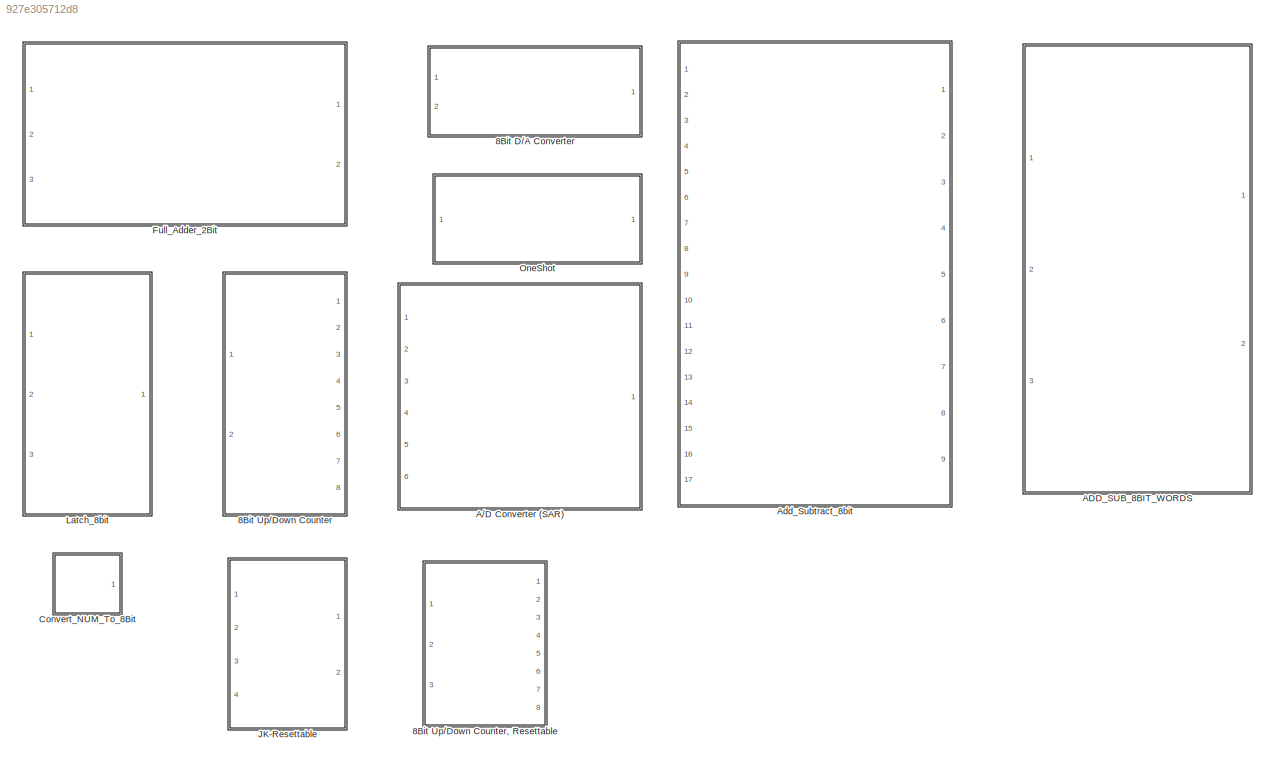
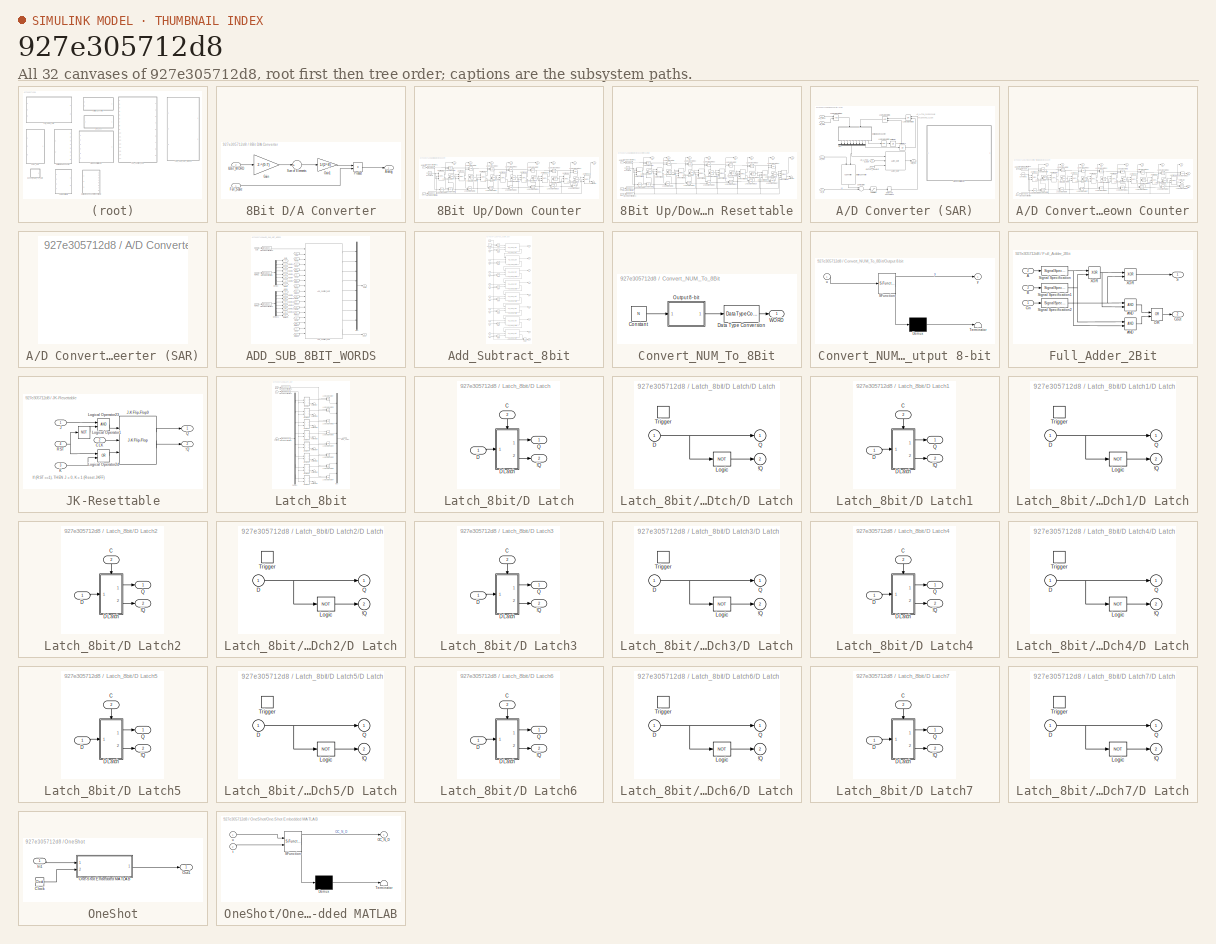
[diagram: thumbnail index - all 32 canvases of the model, root first then tree order]
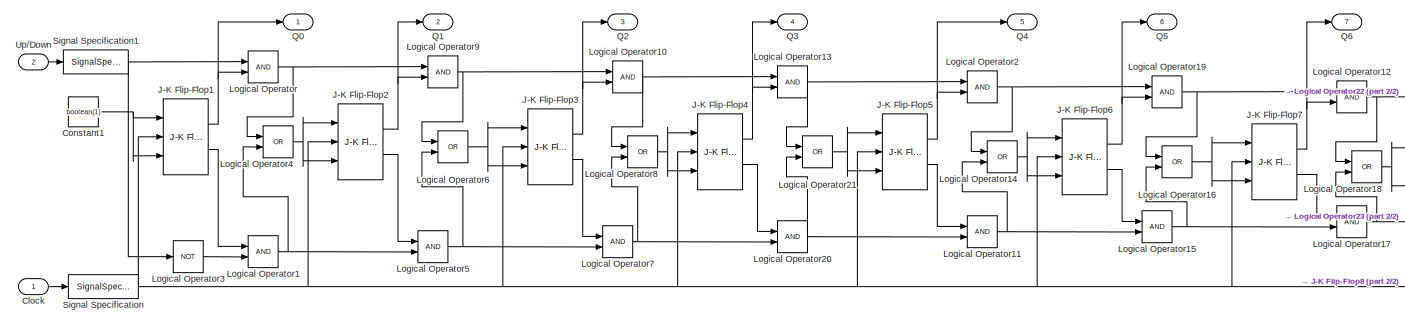
[diagram: A/D Converter (SAR)/8Bit Up/Down Counter - part 1/2, most of the canvas]
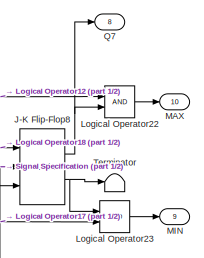
[diagram: A/D Converter (SAR)/8Bit Up/Down Counter - part 2/2, middle right region]
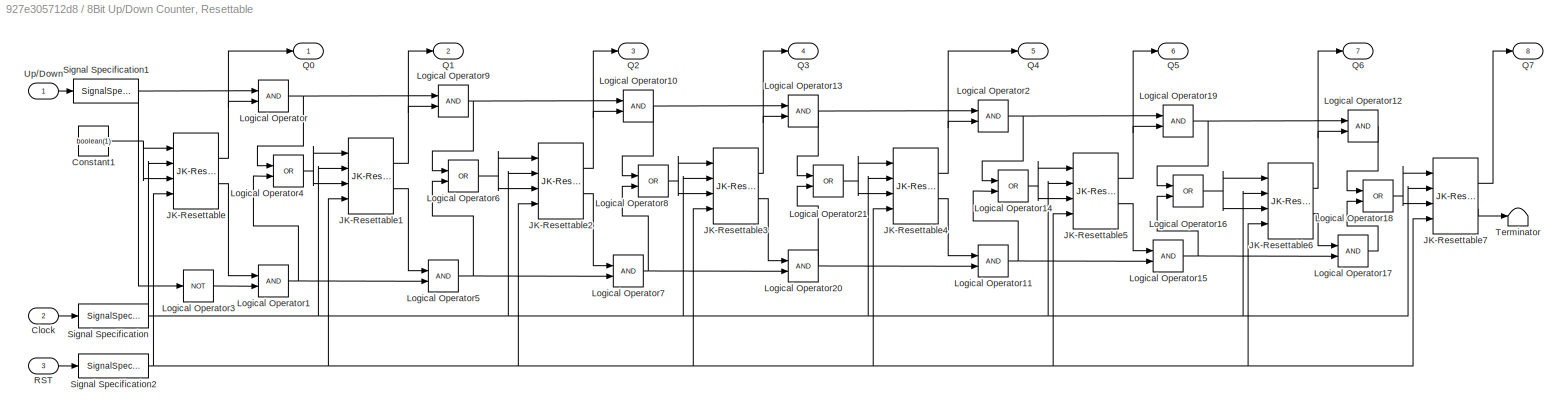
MODEL slx_927e305712d8
KIND library
CONFIG AbsTol = auto
CONFIG FixedStep = auto
CONFIG MaxStep = auto
CONFIG MinStep = auto
CONFIG RelTol = 1e-3
CONFIG SampleTimeConstraint = Unconstrained
CONFIG Solver = ode45
CONFIG SolverMode = Auto
CONFIG SolverName = ode45
CONFIG StartTime = 0.0
CONFIG StopTime = 10.0
BLOCK [SubSystem] 8Bit D//A Converter
  Ports = [2, 1]
  RequestExecContextInheritance = off
  Variant = off
BLOCK [Inport] 8Bit D//A Converter/8-Bit_WORD
  IconDisplay = Port number
  Port = 2
BLOCK [Outport] 8Bit D//A Converter/Analog
  IconDisplay = Port number
BLOCK [Inport] 8Bit D//A Converter/Full_Scale
  IconDisplay = Port number
BLOCK [Gain] 8Bit D//A Converter/Gain
  Gain = 2.^(0:7)
  OutDataTypeStr = Inherit: Inherit via internal rule
  ParamDataTypeStr = Inherit: Inherit via internal rule
  SaturateOnIntegerOverflow = off
BLOCK [Gain] 8Bit D//A Converter/Gain1
  Gain = 1/(2^8)
  OutDataTypeStr = Inherit: Inherit via internal rule
  ParamDataTypeStr = Inherit: Inherit via internal rule
  SaturateOnIntegerOverflow = off
BLOCK [Product] 8Bit D//A Converter/Product
  InputSameDT = off
  OutDataTypeStr = Inherit: Inherit via internal rule
  Ports = [2, 1]
  SaturateOnIntegerOverflow = off
BLOCK [Sum] 8Bit D//A Converter/Sum of Elements
  InputSameDT = off
  Inputs = +
  OutDataTypeStr = Inherit: Inherit via internal rule
  Ports = [1, 1]
  SaturateOnIntegerOverflow = off
BLOCK [SubSystem] 8Bit Up//Down Counter
  Ports = [2, 8]
  RequestExecContextInheritance = off
  Variant = off
BLOCK [SubSystem] 8Bit Up//Down Counter, Resettable
  Ports = [3, 8]
  RequestExecContextInheritance = off
  Variant = off
BLOCK [Inport] 8Bit Up//Down Counter, Resettable/Clock
  IconDisplay = Port number
  Port = 2
BLOCK [Constant] 8Bit Up//Down Counter, Resettable/Constant1
  Value = boolean(1)
BLOCK [Reference] 8Bit Up//Down Counter, Resettable/JK-Resettable  REF=Digital_8bit_Library/JK-Resettable
  Ports = [4, 2]
  SourceBlock = Digital_8bit_Library/JK-Resettable
  SourceType = SubSystem
BLOCK [Reference] 8Bit Up//Down Counter, Resettable/JK-Resettable1  REF=Digital_8bit_Library/JK-Resettable
  Ports = [4, 2]
  SourceBlock = Digital_8bit_Library/JK-Resettable
  SourceType = SubSystem
BLOCK [Reference] 8Bit Up//Down Counter, Resettable/JK-Resettable2  REF=Digital_8bit_Library/JK-Resettable
  Ports = [4, 2]
  SourceBlock = Digital_8bit_Library/JK-Resettable
  SourceType = SubSystem
BLOCK [Reference] 8Bit Up//Down Counter, Resettable/JK-Resettable3  REF=Digital_8bit_Library/JK-Resettable
  Ports = [4, 2]
  SourceBlock = Digital_8bit_Library/JK-Resettable
  SourceType = SubSystem
BLOCK [Reference] 8Bit Up//Down Counter, Resettable/JK-Resettable4  REF=Digital_8bit_Library/JK-Resettable
  Ports = [4, 2]
  SourceBlock = Digital_8bit_Library/JK-Resettable
  SourceType = SubSystem
BLOCK [Reference] 8Bit Up//Down Counter, Resettable/JK-Resettable5  REF=Digital_8bit_Library/JK-Resettable
  Ports = [4, 2]
  SourceBlock = Digital_8bit_Library/JK-Resettable
  SourceType = SubSystem
BLOCK [Reference] 8Bit Up//Down Counter, Resettable/JK-Resettable6  REF=Digital_8bit_Library/JK-Resettable
  Ports = [4, 2]
  SourceBlock = Digital_8bit_Library/JK-Resettable
  SourceType = SubSystem
BLOCK [Reference] 8Bit Up//Down Counter, Resettable/JK-Resettable7  REF=Digital_8bit_Library/JK-Resettable
  Ports = [4, 2]
  SourceBlock = Digital_8bit_Library/JK-Resettable
  SourceType = SubSystem
BLOCK [Logic] 8Bit Up//Down Counter, Resettable/Logical Operator
  AllPortsSameDT = off
  IconShape = distinctive
  OutDataTypeStr = boolean
  Ports = [2, 1]
BLOCK [Logic] 8Bit Up//Down Counter, Resettable/Logical Operator1
  AllPortsSameDT = off
  IconShape = distinctive
  OutDataTypeStr = boolean
  Ports = [2, 1]
BLOCK [Logic] 8Bit Up//Down Counter, Resettable/Logical Operator10
  AllPortsSameDT = off
  IconShape = distinctive
  OutDataTypeStr = boolean
  Ports = [2, 1]
BLOCK [Logic] 8Bit Up//Down Counter, Resettable/Logical Operator11
  AllPortsSameDT = off
  IconShape = distinctive
  OutDataTypeStr = boolean
  Ports = [2, 1]
BLOCK [Logic] 8Bit Up//Down Counter, Resettable/Logical Operator12
  AllPortsSameDT = off
  IconShape = distinctive
  OutDataTypeStr = boolean
  Ports = [2, 1]
BLOCK [Logic] 8Bit Up//Down Counter, Resettable/Logical Operator13
  AllPortsSameDT = off
  IconShape = distinctive
  OutDataTypeStr = boolean
  Ports = [2, 1]
BLOCK [Logic] 8Bit Up//Down Counter, Resettable/Logical Operator14
  AllPortsSameDT = off
  IconShape = distinctive
  Operator = OR
  OutDataTypeStr = boolean
  Ports = [2, 1]
BLOCK [Logic] 8Bit Up//Down Counter, Resettable/Logical Operator15
  AllPortsSameDT = off
  IconShape = distinctive
  OutDataTypeStr = boolean
  Ports = [2, 1]
BLOCK [Logic] 8Bit Up//Down Counter, Resettable/Logical Operator16
  AllPortsSameDT = off
  IconShape = distinctive
  Operator = OR
  OutDataTypeStr = boolean
  Ports = [2, 1]
BLOCK [Logic] 8Bit Up//Down Counter, Resettable/Logical Operator17
  AllPortsSameDT = off
  IconShape = distinctive
  OutDataTypeStr = boolean
  Ports = [2, 1]
BLOCK [Logic] 8Bit Up//Down Counter, Resettable/Logical Operator18
  AllPortsSameDT = off
  IconShape = distinctive
  Operator = OR
  OutDataTypeStr = boolean
  Ports = [2, 1]
BLOCK [Logic] 8Bit Up//Down Counter, Resettable/Logical Operator19
  AllPortsSameDT = off
  IconShape = distinctive
  OutDataTypeStr = boolean
  Ports = [2, 1]
BLOCK [Logic] 8Bit Up//Down Counter, Resettable/Logical Operator2
  AllPortsSameDT = off
  IconShape = distinctive
  OutDataTypeStr = boolean
  Ports = [2, 1]
BLOCK [Logic] 8Bit Up//Down Counter, Resettable/Logical Operator20
  AllPortsSameDT = off
  IconShape = distinctive
  OutDataTypeStr = boolean
  Ports = [2, 1]
BLOCK [Logic] 8Bit Up//Down Counter, Resettable/Logical Operator21
  AllPortsSameDT = off
  IconShape = distinctive
  Operator = OR
  OutDataTypeStr = boolean
  Ports = [2, 1]
BLOCK [Logic] 8Bit Up//Down Counter, Resettable/Logical Operator3
  AllPortsSameDT = off
  IconShape = distinctive
  Operator = NOT
  OutDataTypeStr = boolean
  Ports = [1, 1]
BLOCK [Logic] 8Bit Up//Down Counter, Resettable/Logical Operator4
  AllPortsSameDT = off
  IconShape = distinctive
  Operator = OR
  OutDataTypeStr = boolean
  Ports = [2, 1]
BLOCK [Logic] 8Bit Up//Down Counter, Resettable/Logical Operator5
  AllPortsSameDT = off
  IconShape = distinctive
  OutDataTypeStr = boolean
  Ports = [2, 1]
BLOCK [Logic] 8Bit Up//Down Counter, Resettable/Logical Operator6
  AllPortsSameDT = off
  IconShape = distinctive
  Operator = OR
  OutDataTypeStr = boolean
  Ports = [2, 1]
BLOCK [Logic] 8Bit Up//Down Counter, Resettable/Logical Operator7
  AllPortsSameDT = off
  IconShape = distinctive
  OutDataTypeStr = boolean
  Ports = [2, 1]
BLOCK [Logic] 8Bit Up//Down Counter, Resettable/Logical Operator8
  AllPortsSameDT = off
  IconShape = distinctive
  Operator = OR
  OutDataTypeStr = boolean
  Ports = [2, 1]
BLOCK [Logic] 8Bit Up//Down Counter, Resettable/Logical Operator9
  AllPortsSameDT = off
  IconShape = distinctive
  OutDataTypeStr = boolean
  Ports = [2, 1]
BLOCK [Outport] 8Bit Up//Down Counter, Resettable/Q0
  IconDisplay = Port number
  InitialOutput = 0
BLOCK [Outport] 8Bit Up//Down Counter, Resettable/Q1
  IconDisplay = Port number
  InitialOutput = 0
  Port = 2
BLOCK [Outport] 8Bit Up//Down Counter, Resettable/Q2
  IconDisplay = Port number
  InitialOutput = 0
  Port = 3
BLOCK [Outport] 8Bit Up//Down Counter, Resettable/Q3
  IconDisplay = Port number
  InitialOutput = 0
  Port = 4
BLOCK [Outport] 8Bit Up//Down Counter, Resettable/Q4
  IconDisplay = Port number
  InitialOutput = 0
  Port = 5
BLOCK [Outport] 8Bit Up//Down Counter, Resettable/Q5
  IconDisplay = Port number
  InitialOutput = 0
  Port = 6
BLOCK [Outport] 8Bit Up//Down Counter, Resettable/Q6
  IconDisplay = Port number
  InitialOutput = 0
  Port = 7
BLOCK [Outport] 8Bit Up//Down Counter, Resettable/Q7
  IconDisplay = Port number
  InitialOutput = 0
  Port = 8
BLOCK [Inport] 8Bit Up//Down Counter, Resettable/RST
  IconDisplay = Port number
  Port = 3
BLOCK [SignalSpecification] 8Bit Up//Down Counter, Resettable/Signal Specification
  OutDataTypeStr = boolean
BLOCK [SignalSpecification] 8Bit Up//Down Counter, Resettable/Signal Specification1
  OutDataTypeStr = boolean
BLOCK [SignalSpecification] 8Bit Up//Down Counter, Resettable/Signal Specification2
  OutDataTypeStr = boolean
BLOCK [Terminator] 8Bit Up//Down Counter, Resettable/Terminator
BLOCK [Inport] 8Bit Up//Down Counter, Resettable/Up//Down
  IconDisplay = Port number
BLOCK [Inport] 8Bit Up//Down Counter/Clock
  IconDisplay = Port number
BLOCK [Constant] 8Bit Up//Down Counter/Constant1
  Value = boolean(1)
BLOCK [Reference] 8Bit Up//Down Counter/J-K Flip-Flop1  REF=simulink_extras/Flip Flops/J-K
Flip-Flop
  Ports = [3, 2]
  SourceBlock = simulink_extras/Flip Flops/J-K\nFlip-Flop
  SourceType = JKFlipFlop
BLOCK [Reference] 8Bit Up//Down Counter/J-K Flip-Flop2  REF=simulink_extras/Flip Flops/J-K
Flip-Flop
  Ports = [3, 2]
  SourceBlock = simulink_extras/Flip Flops/J-K\nFlip-Flop
  SourceType = JKFlipFlop
BLOCK [Reference] 8Bit Up//Down Counter/J-K Flip-Flop3  REF=simulink_extras/Flip Flops/J-K
Flip-Flop
  Ports = [3, 2]
  SourceBlock = simulink_extras/Flip Flops/J-K\nFlip-Flop
  SourceType = JKFlipFlop
BLOCK [Reference] 8Bit Up//Down Counter/J-K Flip-Flop4  REF=simulink_extras/Flip Flops/J-K
Flip-Flop
  Ports = [3, 2]
  SourceBlock = simulink_extras/Flip Flops/J-K\nFlip-Flop
  SourceType = JKFlipFlop
BLOCK [Reference] 8Bit Up//Down Counter/J-K Flip-Flop5  REF=simulink_extras/Flip Flops/J-K
Flip-Flop
  Ports = [3, 2]
  SourceBlock = simulink_extras/Flip Flops/J-K\nFlip-Flop
  SourceType = JKFlipFlop
BLOCK [Reference] 8Bit Up//Down Counter/J-K Flip-Flop6  REF=simulink_extras/Flip Flops/J-K
Flip-Flop
  Ports = [3, 2]
  SourceBlock = simulink_extras/Flip Flops/J-K\nFlip-Flop
  SourceType = JKFlipFlop
BLOCK [Reference] 8Bit Up//Down Counter/J-K Flip-Flop7  REF=simulink_extras/Flip Flops/J-K
Flip-Flop
  Ports = [3, 2]
  SourceBlock = simulink_extras/Flip Flops/J-K\nFlip-Flop
  SourceType = JKFlipFlop
BLOCK [Reference] 8Bit Up//Down Counter/J-K Flip-Flop8  REF=simulink_extras/Flip Flops/J-K
Flip-Flop
  Ports = [3, 2]
  SourceBlock = simulink_extras/Flip Flops/J-K\nFlip-Flop
  SourceType = JKFlipFlop
BLOCK [Logic] 8Bit Up//Down Counter/Logical Operator
  AllPortsSameDT = off
  IconShape = distinctive
  OutDataTypeStr = boolean
  Ports = [2, 1]
BLOCK [Logic] 8Bit Up//Down Counter/Logical Operator1
  AllPortsSameDT = off
  IconShape = distinctive
  OutDataTypeStr = boolean
  Ports = [2, 1]
BLOCK [Logic] 8Bit Up//Down Counter/Logical Operator10
  AllPortsSameDT = off
  IconShape = distinctive
  OutDataTypeStr = boolean
  Ports = [2, 1]
BLOCK [Logic] 8Bit Up//Down Counter/Logical Operator11
  AllPortsSameDT = off
  IconShape = distinctive
  OutDataTypeStr = boolean
  Ports = [2, 1]
BLOCK [Logic] 8Bit Up//Down Counter/Logical Operator12
  AllPortsSameDT = off
  IconShape = distinctive
  OutDataTypeStr = boolean
  Ports = [2, 1]
BLOCK [Logic] 8Bit Up//Down Counter/Logical Operator13
  AllPortsSameDT = off
  IconShape = distinctive
  OutDataTypeStr = boolean
  Ports = [2, 1]
BLOCK [Logic] 8Bit Up//Down Counter/Logical Operator14
  AllPortsSameDT = off
  IconShape = distinctive
  Operator = OR
  OutDataTypeStr = boolean
  Ports = [2, 1]
BLOCK [Logic] 8Bit Up//Down Counter/Logical Operator15
  AllPortsSameDT = off
  IconShape = distinctive
  OutDataTypeStr = boolean
  Ports = [2, 1]
BLOCK [Logic] 8Bit Up//Down Counter/Logical Operator16
  AllPortsSameDT = off
  IconShape = distinctive
  Operator = OR
  OutDataTypeStr = boolean
  Ports = [2, 1]
BLOCK [Logic] 8Bit Up//Down Counter/Logical Operator17
  AllPortsSameDT = off
  IconShape = distinctive
  OutDataTypeStr = boolean
  Ports = [2, 1]
BLOCK [Logic] 8Bit Up//Down Counter/Logical Operator18
  AllPortsSameDT = off
  IconShape = distinctive
  Operator = OR
  OutDataTypeStr = boolean
  Ports = [2, 1]
BLOCK [Logic] 8Bit Up//Down Counter/Logical Operator19
  AllPortsSameDT = off
  IconShape = distinctive
  OutDataTypeStr = boolean
  Ports = [2, 1]
BLOCK [Logic] 8Bit Up//Down Counter/Logical Operator2
  AllPortsSameDT = off
  IconShape = distinctive
  OutDataTypeStr = boolean
  Ports = [2, 1]
BLOCK [Logic] 8Bit Up//Down Counter/Logical Operator20
  AllPortsSameDT = off
  IconShape = distinctive
  OutDataTypeStr = boolean
  Ports = [2, 1]
BLOCK [Logic] 8Bit Up//Down Counter/Logical Operator21
  AllPortsSameDT = off
  IconShape = distinctive
  Operator = OR
  OutDataTypeStr = boolean
  Ports = [2, 1]
BLOCK [Logic] 8Bit Up//Down Counter/Logical Operator3
  AllPortsSameDT = off
  IconShape = distinctive
  Operator = NOT
  OutDataTypeStr = boolean
  Ports = [1, 1]
BLOCK [Logic] 8Bit Up//Down Counter/Logical Operator4
  AllPortsSameDT = off
  IconShape = distinctive
  Operator = OR
  OutDataTypeStr = boolean
  Ports = [2, 1]
BLOCK [Logic] 8Bit Up//Down Counter/Logical Operator5
  AllPortsSameDT = off
  IconShape = distinctive
  OutDataTypeStr = boolean
  Ports = [2, 1]
BLOCK [Logic] 8Bit Up//Down Counter/Logical Operator6
  AllPortsSameDT = off
  IconShape = distinctive
  Operator = OR
  OutDataTypeStr = boolean
  Ports = [2, 1]
BLOCK [Logic] 8Bit Up//Down Counter/Logical Operator7
  AllPortsSameDT = off
  IconShape = distinctive
  OutDataTypeStr = boolean
  Ports = [2, 1]
BLOCK [Logic] 8Bit Up//Down Counter/Logical Operator8
  AllPortsSameDT = off
  IconShape = distinctive
  Operator = OR
  OutDataTypeStr = boolean
  Ports = [2, 1]
BLOCK [Logic] 8Bit Up//Down Counter/Logical Operator9
  AllPortsSameDT = off
  IconShape = distinctive
  OutDataTypeStr = boolean
  Ports = [2, 1]
BLOCK [Outport] 8Bit Up//Down Counter/Q0
  IconDisplay = Port number
  InitialOutput = 0
BLOCK [Outport] 8Bit Up//Down Counter/Q1
  IconDisplay = Port number
  InitialOutput = 0
  Port = 2
BLOCK [Outport] 8Bit Up//Down Counter/Q2
  IconDisplay = Port number
  InitialOutput = 0
  Port = 3
BLOCK [Outport] 8Bit Up//Down Counter/Q3
  IconDisplay = Port number
  InitialOutput = 0
  Port = 4
BLOCK [Outport] 8Bit Up//Down Counter/Q4
  IconDisplay = Port number
  InitialOutput = 0
  Port = 5
BLOCK [Outport] 8Bit Up//Down Counter/Q5
  IconDisplay = Port number
  InitialOutput = 0
  Port = 6
BLOCK [Outport] 8Bit Up//Down Counter/Q6
  IconDisplay = Port number
  InitialOutput = 0
  Port = 7
BLOCK [Outport] 8Bit Up//Down Counter/Q7
  IconDisplay = Port number
  InitialOutput = 0
  Port = 8
BLOCK [SignalSpecification] 8Bit Up//Down Counter/Signal Specification
  OutDataTypeStr = boolean
BLOCK [SignalSpecification] 8Bit Up//Down Counter/Signal Specification1
  OutDataTypeStr = boolean
BLOCK [Terminator] 8Bit Up//Down Counter/Terminator
BLOCK [Inport] 8Bit Up//Down Counter/Up//Down
  IconDisplay = Port number
  Port = 2
BLOCK [SubSystem] A//D Converter (SAR)
  Ports = [6, 1]
  RequestExecContextInheritance = off
  Variant = off
BLOCK [Reference] A//D Converter (SAR)/8Bit D//A Converter  REF=Digital_8bit_Library/8Bit D//A Converter
  Ports = [2, 1]
  SourceBlock = Digital_8bit_Library/8Bit D//A Converter
  SourceType = SubSystem
BLOCK [SubSystem] A//D Converter (SAR)/8Bit Up//Down Counter
  AncestorBlock = Digital_8bit_Library/8Bit Up//Down \nCounter
  Ports = [2, 10]
  RequestExecContextInheritance = off
  Variant = off
BLOCK [Inport] A//D Converter (SAR)/8Bit Up//Down Counter/Clock
  IconDisplay = Port number
BLOCK [Constant] A//D Converter (SAR)/8Bit Up//Down Counter/Constant1
  Value = boolean(1)
BLOCK [Reference] A//D Converter (SAR)/8Bit Up//Down Counter/J-K Flip-Flop1  REF=simulink_extras/Flip Flops/J-K
Flip-Flop
  Ports = [3, 2]
  SourceBlock = simulink_extras/Flip Flops/J-K\nFlip-Flop
  SourceType = JKFlipFlop
BLOCK [Reference] A//D Converter (SAR)/8Bit Up//Down Counter/J-K Flip-Flop2  REF=simulink_extras/Flip Flops/J-K
Flip-Flop
  Ports = [3, 2]
  SourceBlock = simulink_extras/Flip Flops/J-K\nFlip-Flop
  SourceType = JKFlipFlop
BLOCK [Reference] A//D Converter (SAR)/8Bit Up//Down Counter/J-K Flip-Flop3  REF=simulink_extras/Flip Flops/J-K
Flip-Flop
  Ports = [3, 2]
  SourceBlock = simulink_extras/Flip Flops/J-K\nFlip-Flop
  SourceType = JKFlipFlop
BLOCK [Reference] A//D Converter (SAR)/8Bit Up//Down Counter/J-K Flip-Flop4  REF=simulink_extras/Flip Flops/J-K
Flip-Flop
  Ports = [3, 2]
  SourceBlock = simulink_extras/Flip Flops/J-K\nFlip-Flop
  SourceType = JKFlipFlop
BLOCK [Reference] A//D Converter (SAR)/8Bit Up//Down Counter/J-K Flip-Flop5  REF=simulink_extras/Flip Flops/J-K
Flip-Flop
  Ports = [3, 2]
  SourceBlock = simulink_extras/Flip Flops/J-K\nFlip-Flop
  SourceType = JKFlipFlop
BLOCK [Reference] A//D Converter (SAR)/8Bit Up//Down Counter/J-K Flip-Flop6  REF=simulink_extras/Flip Flops/J-K
Flip-Flop
  Ports = [3, 2]
  SourceBlock = simulink_extras/Flip Flops/J-K\nFlip-Flop
  SourceType = JKFlipFlop
BLOCK [Reference] A//D Converter (SAR)/8Bit Up//Down Counter/J-K Flip-Flop7  REF=simulink_extras/Flip Flops/J-K
Flip-Flop
  Ports = [3, 2]
  SourceBlock = simulink_extras/Flip Flops/J-K\nFlip-Flop
  SourceType = JKFlipFlop
BLOCK [Reference] A//D Converter (SAR)/8Bit Up//Down Counter/J-K Flip-Flop8  REF=simulink_extras/Flip Flops/J-K
Flip-Flop
  Ports = [3, 2]
  SourceBlock = simulink_extras/Flip Flops/J-K\nFlip-Flop
  SourceType = JKFlipFlop
BLOCK [Logic] A//D Converter (SAR)/8Bit Up//Down Counter/Logical Operator
  AllPortsSameDT = off
  IconShape = distinctive
  OutDataTypeStr = boolean
  Ports = [2, 1]
BLOCK [Logic] A//D Converter (SAR)/8Bit Up//Down Counter/Logical Operator1
  AllPortsSameDT = off
  IconShape = distinctive
  OutDataTypeStr = boolean
  Ports = [2, 1]
BLOCK [Logic] A//D Converter (SAR)/8Bit Up//Down Counter/Logical Operator10
  AllPortsSameDT = off
  IconShape = distinctive
  OutDataTypeStr = boolean
  Ports = [2, 1]
BLOCK [Logic] A//D Converter (SAR)/8Bit Up//Down Counter/Logical Operator11
  AllPortsSameDT = off
  IconShape = distinctive
  OutDataTypeStr = boolean
  Ports = [2, 1]
BLOCK [Logic] A//D Converter (SAR)/8Bit Up//Down Counter/Logical Operator12
  AllPortsSameDT = off
  IconShape = distinctive
  OutDataTypeStr = boolean
  Ports = [2, 1]
BLOCK [Logic] A//D Converter (SAR)/8Bit Up//Down Counter/Logical Operator13
  AllPortsSameDT = off
  IconShape = distinctive
  OutDataTypeStr = boolean
  Ports = [2, 1]
BLOCK [Logic] A//D Converter (SAR)/8Bit Up//Down Counter/Logical Operator14
  AllPortsSameDT = off
  IconShape = distinctive
  Operator = OR
  OutDataTypeStr = boolean
  Ports = [2, 1]
BLOCK [Logic] A//D Converter (SAR)/8Bit Up//Down Counter/Logical Operator15
  AllPortsSameDT = off
  IconShape = distinctive
  OutDataTypeStr = boolean
  Ports = [2, 1]
BLOCK [Logic] A//D Converter (SAR)/8Bit Up//Down Counter/Logical Operator16
  AllPortsSameDT = off
  IconShape = distinctive
  Operator = OR
  OutDataTypeStr = boolean
  Ports = [2, 1]
BLOCK [Logic] A//D Converter (SAR)/8Bit Up//Down Counter/Logical Operator17
  AllPortsSameDT = off
  IconShape = distinctive
  OutDataTypeStr = boolean
  Ports = [2, 1]
BLOCK [Logic] A//D Converter (SAR)/8Bit Up//Down Counter/Logical Operator18
  AllPortsSameDT = off
  IconShape = distinctive
  Operator = OR
  OutDataTypeStr = boolean
  Ports = [2, 1]
BLOCK [Logic] A//D Converter (SAR)/8Bit Up//Down Counter/Logical Operator19
  AllPortsSameDT = off
  IconShape = distinctive
  OutDataTypeStr = boolean
  Ports = [2, 1]
BLOCK [Logic] A//D Converter (SAR)/8Bit Up//Down Counter/Logical Operator2
  AllPortsSameDT = off
  IconShape = distinctive
  OutDataTypeStr = boolean
  Ports = [2, 1]
BLOCK [Logic] A//D Converter (SAR)/8Bit Up//Down Counter/Logical Operator20
  AllPortsSameDT = off
  IconShape = distinctive
  OutDataTypeStr = boolean
  Ports = [2, 1]
BLOCK [Logic] A//D Converter (SAR)/8Bit Up//Down Counter/Logical Operator21
  AllPortsSameDT = off
  IconShape = distinctive
  Operator = OR
  OutDataTypeStr = boolean
  Ports = [2, 1]
BLOCK [Logic] A//D Converter (SAR)/8Bit Up//Down Counter/Logical Operator22
  AllPortsSameDT = off
  IconShape = distinctive
  OutDataTypeStr = boolean
  Ports = [2, 1]
BLOCK [Logic] A//D Converter (SAR)/8Bit Up//Down Counter/Logical Operator23
  AllPortsSameDT = off
  IconShape = distinctive
  OutDataTypeStr = boolean
  Ports = [2, 1]
BLOCK [Logic] A//D Converter (SAR)/8Bit Up//Down Counter/Logical Operator3
  AllPortsSameDT = off
  IconShape = distinctive
  Operator = NOT
  OutDataTypeStr = boolean
  Ports = [1, 1]
BLOCK [Logic] A//D Converter (SAR)/8Bit Up//Down Counter/Logical Operator4
  AllPortsSameDT = off
  IconShape = distinctive
  Operator = OR
  OutDataTypeStr = boolean
  Ports = [2, 1]
BLOCK [Logic] A//D Converter (SAR)/8Bit Up//Down Counter/Logical Operator5
  AllPortsSameDT = off
  IconShape = distinctive
  OutDataTypeStr = boolean
  Ports = [2, 1]
BLOCK [Logic] A//D Converter (SAR)/8Bit Up//Down Counter/Logical Operator6
  AllPortsSameDT = off
  IconShape = distinctive
  Operator = OR
  OutDataTypeStr = boolean
  Ports = [2, 1]
BLOCK [Logic] A//D Converter (SAR)/8Bit Up//Down Counter/Logical Operator7
  AllPortsSameDT = off
  IconShape = distinctive
  OutDataTypeStr = boolean
  Ports = [2, 1]
BLOCK [Logic] A//D Converter (SAR)/8Bit Up//Down Counter/Logical Operator8
  AllPortsSameDT = off
  IconShape = distinctive
  Operator = OR
  OutDataTypeStr = boolean
  Ports = [2, 1]
BLOCK [Logic] A//D Converter (SAR)/8Bit Up//Down Counter/Logical Operator9
  AllPortsSameDT = off
  IconShape = distinctive
  OutDataTypeStr = boolean
  Ports = [2, 1]
BLOCK [Outport] A//D Converter (SAR)/8Bit Up//Down Counter/MAX
  IconDisplay = Port number
  InitialOutput = 0
  Port = 10
BLOCK [Outport] A//D Converter (SAR)/8Bit Up//Down Counter/MIN
  IconDisplay = Port number
  InitialOutput = 0
  Port = 9
BLOCK [Outport] A//D Converter (SAR)/8Bit Up//Down Counter/Q0
  IconDisplay = Port number
  InitialOutput = 0
BLOCK [Outport] A//D Converter (SAR)/8Bit Up//Down Counter/Q1
  IconDisplay = Port number
  InitialOutput = 0
  Port = 2
BLOCK [Outport] A//D Converter (SAR)/8Bit Up//Down Counter/Q2
  IconDisplay = Port number
  InitialOutput = 0
  Port = 3
BLOCK [Outport] A//D Converter (SAR)/8Bit Up//Down Counter/Q3
  IconDisplay = Port number
  InitialOutput = 0
  Port = 4
BLOCK [Outport] A//D Converter (SAR)/8Bit Up//Down Counter/Q4
  IconDisplay = Port number
  InitialOutput = 0
  Port = 5
BLOCK [Outport] A//D Converter (SAR)/8Bit Up//Down Counter/Q5
  IconDisplay = Port number
  InitialOutput = 0
  Port = 6
BLOCK [Outport] A//D Converter (SAR)/8Bit Up//Down Counter/Q6
  IconDisplay = Port number
  InitialOutput = 0
  Port = 7
BLOCK [Outport] A//D Converter (SAR)/8Bit Up//Down Counter/Q7
  IconDisplay = Port number
  InitialOutput = 0
  Port = 8
BLOCK [SignalSpecification] A//D Converter (SAR)/8Bit Up//Down Counter/Signal Specification
  OutDataTypeStr = boolean
BLOCK [SignalSpecification] A//D Converter (SAR)/8Bit Up//Down Counter/Signal Specification1
  OutDataTypeStr = boolean
BLOCK [Terminator] A//D Converter (SAR)/8Bit Up//Down Counter/Terminator
BLOCK [Inport] A//D Converter (SAR)/8Bit Up//Down Counter/Up//Down
  IconDisplay = Port number
  Port = 2
BLOCK [Outport] A//D Converter (SAR)/8Bit_Out
  IconDisplay = Port number
BLOCK [SubSystem] A//D Converter (SAR)/A//D Converter (SAR)
  Ports = []
  RequestExecContextInheritance = off
  Variant = off
BLOCK [Inport] A//D Converter (SAR)/AD_Clock
  IconDisplay = Port number
BLOCK [Inport] A//D Converter (SAR)/AD_IN
  IconDisplay = Port number
  Port = 4
BLOCK [Inport] A//D Converter (SAR)/AD_LATCH_CLOCK
  IconDisplay = Port number
  Port = 5
BLOCK [Inport] A//D Converter (SAR)/AD_REF
  IconDisplay = Port number
  Port = 3
BLOCK [Inport] A//D Converter (SAR)/AD_SOC
  IconDisplay = Port number
  Port = 2
BLOCK [Sum] A//D Converter (SAR)/Comparator
  InputSameDT = off
  Inputs = -+
  OutDataTypeStr = double
  Ports = [2, 1]
  SaturateOnIntegerOverflow = off
BLOCK [DataTypeConversion] A//D Converter (SAR)/Data Type Conversion4
  OutDataTypeStr = boolean
  RndMeth = Floor
  SaturateOnIntegerOverflow = off
BLOCK [Reference] A//D Converter (SAR)/Latch_8bit  REF=Digital_8bit_Library/Latch_8bit
  Ports = [3, 1]
  SourceBlock = Digital_8bit_Library/Latch_8bit
  SourceType = SubSystem
BLOCK [Logic] A//D Converter (SAR)/Logical Operator1
  AllPortsSameDT = off
  IconShape = distinctive
  OutDataTypeStr = boolean
  Ports = [2, 1]
BLOCK [Logic] A//D Converter (SAR)/Logical Operator2
  AllPortsSameDT = off
  IconShape = distinctive
  Operator = NOT
  OutDataTypeStr = boolean
  Ports = [1, 1]
BLOCK [Logic] A//D Converter (SAR)/Logical Operator20
  AllPortsSameDT = off
  IconShape = distinctive
  OutDataTypeStr = boolean
  Ports = [2, 1]
BLOCK [Logic] A//D Converter (SAR)/Logical Operator3
  AllPortsSameDT = off
  IconShape = distinctive
  Operator = OR
  OutDataTypeStr = boolean
  Ports = [2, 1]
BLOCK [Mux] A//D Converter (SAR)/Mux
  DisplayOption = bar
  Inputs = 8
  Ports = [8, 1]
BLOCK [Inport] A//D Converter (SAR)/OUTPUT_ENABLE
  IconDisplay = Port number
  Port = 6
BLOCK [Saturate] A//D Converter (SAR)/Saturation
  InputPortMap = u0
  LowerLimit = 0
  Ports = [1, 1]
  UpperLimit = 1
BLOCK [UnitDelay] A//D Converter (SAR)/Unit Delay
  InitialCondition = 1
  SampleTime = -1
BLOCK [UnitDelay] A//D Converter (SAR)/Unit Delay1
  SampleTime = -1
BLOCK [SubSystem] ADD_SUB_8BIT_WORDS
  Ports = [3, 2]
  RequestExecContextInheritance = off
  Variant = off
BLOCK [Reference] ADD_SUB_8BIT_WORDS/Add_Subtract_8bit  REF=Digital_8bit_Library/Add_Subtract_8bit
  Ports = [17, 9]
  SourceBlock = Digital_8bit_Library/Add_Subtract_8bit
BLOCK [Outport] ADD_SUB_8BIT_WORDS/Cout
  IconDisplay = Port number
  Port = 2
BLOCK [Demux] ADD_SUB_8BIT_WORDS/Demux
  DisplayOption = bar
  Outputs = 8
  Ports = [1, 8]
BLOCK [Demux] ADD_SUB_8BIT_WORDS/Demux1
  DisplayOption = bar
  Outputs = 8
  Ports = [1, 8]
BLOCK [From] ADD_SUB_8BIT_WORDS/From
  GotoTag = A0
BLOCK [From] ADD_SUB_8BIT_WORDS/From1
  GotoTag = A1
BLOCK [From] ADD_SUB_8BIT_WORDS/From10
  GotoTag = B2
BLOCK [From] ADD_SUB_8BIT_WORDS/From11
  GotoTag = B3
BLOCK [From] ADD_SUB_8BIT_WORDS/From12
  GotoTag = B4
BLOCK [From] ADD_SUB_8BIT_WORDS/From13
  GotoTag = B5
BLOCK [From] ADD_SUB_8BIT_WORDS/From14
  GotoTag = B6
BLOCK [From] ADD_SUB_8BIT_WORDS/From15
  GotoTag = B7
BLOCK [From] ADD_SUB_8BIT_WORDS/From2
  GotoTag = A2
BLOCK [From] ADD_SUB_8BIT_WORDS/From3
  GotoTag = A3
BLOCK [From] ADD_SUB_8BIT_WORDS/From4
  GotoTag = A4
BLOCK [From] ADD_SUB_8BIT_WORDS/From5
  GotoTag = A5
BLOCK [From] ADD_SUB_8BIT_WORDS/From6
  GotoTag = A6
BLOCK [From] ADD_SUB_8BIT_WORDS/From7
  GotoTag = A7
BLOCK [From] ADD_SUB_8BIT_WORDS/From8
  GotoTag = B0
BLOCK [From] ADD_SUB_8BIT_WORDS/From9
  GotoTag = B1
BLOCK [Goto] ADD_SUB_8BIT_WORDS/Goto
  GotoTag = A0
BLOCK [Goto] ADD_SUB_8BIT_WORDS/Goto1
  GotoTag = A1
BLOCK [Goto] ADD_SUB_8BIT_WORDS/Goto10
  GotoTag = B3
BLOCK [Goto] ADD_SUB_8BIT_WORDS/Goto11
  GotoTag = B4
BLOCK [Goto] ADD_SUB_8BIT_WORDS/Goto12
  GotoTag = B5
BLOCK [Goto] ADD_SUB_8BIT_WORDS/Goto13
  GotoTag = B6
BLOCK [Goto] ADD_SUB_8BIT_WORDS/Goto14
  GotoTag = B7
BLOCK [Goto] ADD_SUB_8BIT_WORDS/Goto15
  GotoTag = B2
BLOCK [Goto] ADD_SUB_8BIT_WORDS/Goto2
  GotoTag = A3
BLOCK [Goto] ADD_SUB_8BIT_WORDS/Goto3
  GotoTag = A4
BLOCK [Goto] ADD_SUB_8BIT_WORDS/Goto4
  GotoTag = A5
BLOCK [Goto] ADD_SUB_8BIT_WORDS/Goto5
  GotoTag = A6
BLOCK [Goto] ADD_SUB_8BIT_WORDS/Goto6
  GotoTag = A7
BLOCK [Goto] ADD_SUB_8BIT_WORDS/Goto7
  GotoTag = A2
BLOCK [Goto] ADD_SUB_8BIT_WORDS/Goto8
  GotoTag = B0
BLOCK [Goto] ADD_SUB_8BIT_WORDS/Goto9
  GotoTag = B1
BLOCK [Mux] ADD_SUB_8BIT_WORDS/Mux
  DisplayOption = bar
  Inputs = 8
  Ports = [8, 1]
BLOCK [Inport] ADD_SUB_8BIT_WORDS/SUB
  IconDisplay = Port number
BLOCK [Outport] ADD_SUB_8BIT_WORDS/SUM
  IconDisplay = Port number
BLOCK [SignalSpecification] ADD_SUB_8BIT_WORDS/Signal Specification
  OutDataTypeStr = boolean
BLOCK [SignalSpecification] ADD_SUB_8BIT_WORDS/Signal Specification1
  OutDataTypeStr = boolean
BLOCK [SignalSpecification] ADD_SUB_8BIT_WORDS/Signal Specification2
  OutDataTypeStr = boolean
BLOCK [Inport] ADD_SUB_8BIT_WORDS/WORD1
  IconDisplay = Port number
  Port = 2
BLOCK [Inport] ADD_SUB_8BIT_WORDS/WORD2
  IconDisplay = Port number
  Port = 3
BLOCK [SubSystem] Add_Subtract_8bit
  Ports = [17, 9]
  RequestExecContextInheritance = off
  Variant = off
BLOCK [Inport] Add_Subtract_8bit/A0
  IconDisplay = Port number
  Port = 2
BLOCK [Inport] Add_Subtract_8bit/A1
  IconDisplay = Port number
  Port = 4
BLOCK [Inport] Add_Subtract_8bit/A2
  IconDisplay = Port number
  Port = 6
BLOCK [Inport] Add_Subtract_8bit/A3
  IconDisplay = Port number
  Port = 8
BLOCK [Inport] Add_Subtract_8bit/A4
  IconDisplay = Port number
  Port = 10
BLOCK [Inport] Add_Subtract_8bit/A5
  IconDisplay = Port number
  Port = 12
BLOCK [Inport] Add_Subtract_8bit/A6
  IconDisplay = Port number
  Port = 14
BLOCK [Inport] Add_Subtract_8bit/A7
  IconDisplay = Port number
  Port = 16
BLOCK [Inport] Add_Subtract_8bit/B0
  IconDisplay = Port number
  Port = 3
BLOCK [Inport] Add_Subtract_8bit/B1
  IconDisplay = Port number
  Port = 5
BLOCK [Inport] Add_Subtract_8bit/B2
  IconDisplay = Port number
  Port = 7
BLOCK [Inport] Add_Subtract_8bit/B3
  IconDisplay = Port number
  Port = 9
BLOCK [Inport] Add_Subtract_8bit/B4
  IconDisplay = Port number
  Port = 11
BLOCK [Inport] Add_Subtract_8bit/B5
  IconDisplay = Port number
  Port = 13
BLOCK [Inport] Add_Subtract_8bit/B6
  IconDisplay = Port number
  Port = 15
BLOCK [Inport] Add_Subtract_8bit/B7
  IconDisplay = Port number
  Port = 17
BLOCK [Constant] Add_Subtract_8bit/Constant
  OutDataTypeStr = boolean
  Value = 0
BLOCK [Outport] Add_Subtract_8bit/Cout
  IconDisplay = Port number
  Port = 9
BLOCK [Reference] Add_Subtract_8bit/Full_Adder_2Bit  REF=Digital_8bit_Library/Full_Adder_2Bit
  Ports = [3, 2]
  SourceBlock = Digital_8bit_Library/Full_Adder_2Bit
BLOCK [Reference] Add_Subtract_8bit/Full_Adder_2Bit1  REF=Digital_8bit_Library/Full_Adder_2Bit
  Ports = [3, 2]
  SourceBlock = Digital_8bit_Library/Full_Adder_2Bit
BLOCK [Reference] Add_Subtract_8bit/Full_Adder_2Bit2  REF=Digital_8bit_Library/Full_Adder_2Bit
  Ports = [3, 2]
  SourceBlock = Digital_8bit_Library/Full_Adder_2Bit
BLOCK [Reference] Add_Subtract_8bit/Full_Adder_2Bit3  REF=Digital_8bit_Library/Full_Adder_2Bit
  Ports = [3, 2]
  SourceBlock = Digital_8bit_Library/Full_Adder_2Bit
BLOCK [Reference] Add_Subtract_8bit/Full_Adder_2Bit4  REF=Digital_8bit_Library/Full_Adder_2Bit
  Ports = [3, 2]
  SourceBlock = Digital_8bit_Library/Full_Adder_2Bit
BLOCK [Reference] Add_Subtract_8bit/Full_Adder_2Bit5  REF=Digital_8bit_Library/Full_Adder_2Bit
  Ports = [3, 2]
  SourceBlock = Digital_8bit_Library/Full_Adder_2Bit
BLOCK [Reference] Add_Subtract_8bit/Full_Adder_2Bit6  REF=Digital_8bit_Library/Full_Adder_2Bit
  Ports = [3, 2]
  SourceBlock = Digital_8bit_Library/Full_Adder_2Bit
BLOCK [Reference] Add_Subtract_8bit/Full_Adder_2Bit7  REF=Digital_8bit_Library/Full_Adder_2Bit
  Ports = [3, 2]
  SourceBlock = Digital_8bit_Library/Full_Adder_2Bit
BLOCK [Outport] Add_Subtract_8bit/S0
  IconDisplay = Port number
BLOCK [Outport] Add_Subtract_8bit/S1
  IconDisplay = Port number
  Port = 2
BLOCK [Outport] Add_Subtract_8bit/S2
  IconDisplay = Port number
  Port = 3
BLOCK [Outport] Add_Subtract_8bit/S3
  IconDisplay = Port number
  Port = 4
BLOCK [Outport] Add_Subtract_8bit/S4
  IconDisplay = Port number
  Port = 5
BLOCK [Outport] Add_Subtract_8bit/S5
  IconDisplay = Port number
  Port = 6
BLOCK [Outport] Add_Subtract_8bit/S6
  IconDisplay = Port number
  Port = 7
BLOCK [Outport] Add_Subtract_8bit/S7
  IconDisplay = Port number
  Port = 8
BLOCK [Inport] Add_Subtract_8bit/SUB
  IconDisplay = Port number
BLOCK [Logic] Add_Subtract_8bit/XOR
  AllPortsSameDT = off
  IconShape = distinctive
  Operator = XOR
  OutDataTypeStr = boolean
  Ports = [2, 1]
BLOCK [Logic] Add_Subtract_8bit/XOR1
  AllPortsSameDT = off
  IconShape = distinctive
  Operator = XOR
  OutDataTypeStr = boolean
  Ports = [2, 1]
BLOCK [Logic] Add_Subtract_8bit/XOR2
  AllPortsSameDT = off
  IconShape = distinctive
  Operator = XOR
  OutDataTypeStr = boolean
  Ports = [2, 1]
BLOCK [Logic] Add_Subtract_8bit/XOR3
  AllPortsSameDT = off
  IconShape = distinctive
  Operator = XOR
  OutDataTypeStr = boolean
  Ports = [2, 1]
BLOCK [Logic] Add_Subtract_8bit/XOR4
  AllPortsSameDT = off
  IconShape = distinctive
  Operator = XOR
  OutDataTypeStr = boolean
  Ports = [2, 1]
BLOCK [Logic] Add_Subtract_8bit/XOR5
  AllPortsSameDT = off
  IconShape = distinctive
  Operator = XOR
  OutDataTypeStr = boolean
  Ports = [2, 1]
BLOCK [Logic] Add_Subtract_8bit/XOR6
  AllPortsSameDT = off
  IconShape = distinctive
  Operator = XOR
  OutDataTypeStr = boolean
  Ports = [2, 1]
BLOCK [Logic] Add_Subtract_8bit/XOR7
  AllPortsSameDT = off
  IconShape = distinctive
  Operator = XOR
  OutDataTypeStr = boolean
  Ports = [2, 1]
BLOCK [Logic] Add_Subtract_8bit/XOR8
  AllPortsSameDT = off
  IconShape = distinctive
  Operator = XOR
  OutDataTypeStr = boolean
  Ports = [2, 1]
BLOCK [Logic] Add_Subtract_8bit/XOR9
  AllPortsSameDT = off
  IconShape = distinctive
  Operator = XOR
  OutDataTypeStr = boolean
  Ports = [2, 1]
BLOCK [SubSystem] Convert_NUM_To_8Bit
  Ports = [0, 1]
  RequestExecContextInheritance = off
  Variant = off
BLOCK [Constant] Convert_NUM_To_8Bit/Constant
  Value = N
BLOCK [DataTypeConversion] Convert_NUM_To_8Bit/Data Type Conversion
  OutDataTypeStr = boolean
  RndMeth = Floor
  SaturateOnIntegerOverflow = off
BLOCK [SubSystem] Convert_NUM_To_8Bit/Output 8-bit
  ErrorFcn = Stateflow.Translate.translate
  PermitHierarchicalResolution = ExplicitOnly
  Ports = [1, 1]
  RequestExecContextInheritance = off
  SFBlockType = MATLAB Function
  TreatAsAtomicUnit = on
  Variant = off
BLOCK [Demux] Convert_NUM_To_8Bit/Output 8-bit/ Demux 
  Outputs = 1
  Ports = [1, 1]
BLOCK [S-Function] Convert_NUM_To_8Bit/Output 8-bit/ SFunction 
  EnableBusSupport = off
  FunctionName = sf_sfun
  PortCounts = [1 2]
  Ports = [1, 2]
  SFunctionDeploymentMode = off
  Tag = Stateflow S-Function Digital_8bit_Library 2
BLOCK [Terminator] Convert_NUM_To_8Bit/Output 8-bit/ Terminator 
BLOCK [Inport] Convert_NUM_To_8Bit/Output 8-bit/u
  IconDisplay = Port number
BLOCK [Outport] Convert_NUM_To_8Bit/Output 8-bit/y
  IconDisplay = Port number
BLOCK [Outport] Convert_NUM_To_8Bit/WORD
  IconDisplay = Port number
BLOCK [SubSystem] Full_Adder_2Bit
  Ports = [3, 2]
  RequestExecContextInheritance = off
  Variant = off
BLOCK [Inport] Full_Adder_2Bit/A
  IconDisplay = Port number
  Port = 2
BLOCK [Logic] Full_Adder_2Bit/AND
  AllPortsSameDT = off
  IconShape = distinctive
  OutDataTypeStr = boolean
  Ports = [2, 1]
BLOCK [Logic] Full_Adder_2Bit/AND 
  AllPortsSameDT = off
  IconShape = distinctive
  OutDataTypeStr = boolean
  Ports = [2, 1]
BLOCK [Inport] Full_Adder_2Bit/B
  IconDisplay = Port number
  Port = 3
BLOCK [Inport] Full_Adder_2Bit/Cin
  IconDisplay = Port number
BLOCK [Outport] Full_Adder_2Bit/Cout
  IconDisplay = Port number
  Port = 2
BLOCK [Logic] Full_Adder_2Bit/OR
  AllPortsSameDT = off
  IconShape = distinctive
  Operator = OR
  OutDataTypeStr = boolean
  Ports = [2, 1]
BLOCK [Outport] Full_Adder_2Bit/S
  IconDisplay = Port number
BLOCK [SignalSpecification] Full_Adder_2Bit/Signal Specification
  OutDataTypeStr = boolean
BLOCK [SignalSpecification] Full_Adder_2Bit/Signal Specification1
  OutDataTypeStr = boolean
BLOCK [SignalSpecification] Full_Adder_2Bit/Signal Specification2
  OutDataTypeStr = boolean
BLOCK [Logic] Full_Adder_2Bit/XOR
  AllPortsSameDT = off
  IconShape = distinctive
  Operator = XOR
  OutDataTypeStr = boolean
  Ports = [2, 1]
BLOCK [Logic] Full_Adder_2Bit/XOR 
  AllPortsSameDT = off
  IconShape = distinctive
  Operator = XOR
  OutDataTypeStr = boolean
  Ports = [2, 1]
BLOCK [SubSystem] JK-Resettable
  Ports = [4, 2]
  RequestExecContextInheritance = off
  Variant = off
BLOCK [Outport] JK-Resettable/!Q
  IconDisplay = Port number
  Port = 2
BLOCK [Inport] JK-Resettable/CLK
  IconDisplay = Port number
  Port = 2
BLOCK [Inport] JK-Resettable/J
  IconDisplay = Port number
BLOCK [Reference] JK-Resettable/J-K Flip-Flop9  REF=simulink_extras/Flip Flops/J-K
Flip-Flop
  Ports = [3, 2]
  SourceBlock = simulink_extras/Flip Flops/J-K\nFlip-Flop
  SourceType = JKFlipFlop
BLOCK [Inport] JK-Resettable/K
  IconDisplay = Port number
  Port = 3
BLOCK [Logic] JK-Resettable/Logical Operator1
  AllPortsSameDT = off
  IconShape = distinctive
  Operator = NOT
  OutDataTypeStr = boolean
  Ports = [1, 1]
BLOCK [Logic] JK-Resettable/Logical Operator23
  AllPortsSameDT = off
  IconShape = distinctive
  OutDataTypeStr = boolean
  Ports = [2, 1]
BLOCK [Logic] JK-Resettable/Logical Operator24
  AllPortsSameDT = off
  IconShape = distinctive
  Operator = OR
  OutDataTypeStr = boolean
  Ports = [2, 1]
BLOCK [Outport] JK-Resettable/Q
  IconDisplay = Port number
BLOCK [Inport] JK-Resettable/RST
  IconDisplay = Port number
  Port = 4
BLOCK [SubSystem] Latch_8bit
  Ports = [3, 1]
  RequestExecContextInheritance = off
  Variant = off
BLOCK [Inport] Latch_8bit/!CLR
  IconDisplay = Port number
  Port = 3
BLOCK [Inport] Latch_8bit/8bitWord
  IconDisplay = Port number
BLOCK [Inport] Latch_8bit/CLK
  IconDisplay = Port number
  Port = 2
BLOCK [SubSystem] Latch_8bit/D Latch
  Ports = [2, 2]
  RequestExecContextInheritance = off
  Variant = off
BLOCK [Outport] Latch_8bit/D Latch/!Q
  IconDisplay = Port number
  InitialOutput = 1
  Port = 2
BLOCK [Inport] Latch_8bit/D Latch/C
  IconDisplay = Port number
  Port = 2
BLOCK [Inport] Latch_8bit/D Latch/D
  IconDisplay = Port number
BLOCK [SubSystem] Latch_8bit/D Latch/D Latch
  Ports = [1, 2, 0, 1]
  RequestExecContextInheritance = off
  TreatAsAtomicUnit = on
  Variant = off
BLOCK [Outport] Latch_8bit/D Latch/D Latch/!Q
  IconDisplay = Port number
  InitialOutput = 1
  Port = 2
BLOCK [Inport] Latch_8bit/D Latch/D Latch/D
  IconDisplay = Port number
BLOCK [Logic] Latch_8bit/D Latch/D Latch/Logic
  Inputs = 1
  Operator = NOT
  Ports = [1, 1]
BLOCK [Outport] Latch_8bit/D Latch/D Latch/Q
  IconDisplay = Port number
  InitialOutput = 0
BLOCK [TriggerPort] Latch_8bit/D Latch/D Latch/Trigger
  Ports = []
  StatesWhenEnabling = held
  VariantControl = Variant
BLOCK [Outport] Latch_8bit/D Latch/Q
  IconDisplay = Port number
  InitialOutput = 0
BLOCK [SubSystem] Latch_8bit/D Latch1
  Ports = [2, 2]
  RequestExecContextInheritance = off
  Variant = off
BLOCK [Outport] Latch_8bit/D Latch1/!Q
  IconDisplay = Port number
  InitialOutput = 1
  Port = 2
BLOCK [Inport] Latch_8bit/D Latch1/C
  IconDisplay = Port number
  Port = 2
BLOCK [Inport] Latch_8bit/D Latch1/D
  IconDisplay = Port number
BLOCK [SubSystem] Latch_8bit/D Latch1/D Latch
  Ports = [1, 2, 0, 1]
  RequestExecContextInheritance = off
  TreatAsAtomicUnit = on
  Variant = off
BLOCK [Outport] Latch_8bit/D Latch1/D Latch/!Q
  IconDisplay = Port number
  InitialOutput = 1
  Port = 2
BLOCK [Inport] Latch_8bit/D Latch1/D Latch/D
  IconDisplay = Port number
BLOCK [Logic] Latch_8bit/D Latch1/D Latch/Logic
  Inputs = 1
  Operator = NOT
  Ports = [1, 1]
BLOCK [Outport] Latch_8bit/D Latch1/D Latch/Q
  IconDisplay = Port number
  InitialOutput = 0
BLOCK [TriggerPort] Latch_8bit/D Latch1/D Latch/Trigger
  Ports = []
  StatesWhenEnabling = held
  VariantControl = Variant
BLOCK [Outport] Latch_8bit/D Latch1/Q
  IconDisplay = Port number
  InitialOutput = 0
BLOCK [SubSystem] Latch_8bit/D Latch2
  Ports = [2, 2]
  RequestExecContextInheritance = off
  Variant = off
BLOCK [Outport] Latch_8bit/D Latch2/!Q
  IconDisplay = Port number
  InitialOutput = 1
  Port = 2
BLOCK [Inport] Latch_8bit/D Latch2/C
  IconDisplay = Port number
  Port = 2
BLOCK [Inport] Latch_8bit/D Latch2/D
  IconDisplay = Port number
BLOCK [SubSystem] Latch_8bit/D Latch2/D Latch
  Ports = [1, 2, 0, 1]
  RequestExecContextInheritance = off
  TreatAsAtomicUnit = on
  Variant = off
BLOCK [Outport] Latch_8bit/D Latch2/D Latch/!Q
  IconDisplay = Port number
  InitialOutput = 1
  Port = 2
BLOCK [Inport] Latch_8bit/D Latch2/D Latch/D
  IconDisplay = Port number
BLOCK [Logic] Latch_8bit/D Latch2/D Latch/Logic
  Inputs = 1
  Operator = NOT
  Ports = [1, 1]
BLOCK [Outport] Latch_8bit/D Latch2/D Latch/Q
  IconDisplay = Port number
  InitialOutput = 0
BLOCK [TriggerPort] Latch_8bit/D Latch2/D Latch/Trigger
  Ports = []
  StatesWhenEnabling = held
  VariantControl = Variant
BLOCK [Outport] Latch_8bit/D Latch2/Q
  IconDisplay = Port number
  InitialOutput = 0
BLOCK [SubSystem] Latch_8bit/D Latch3
  Ports = [2, 2]
  RequestExecContextInheritance = off
  Variant = off
BLOCK [Outport] Latch_8bit/D Latch3/!Q
  IconDisplay = Port number
  InitialOutput = 1
  Port = 2
BLOCK [Inport] Latch_8bit/D Latch3/C
  IconDisplay = Port number
  Port = 2
BLOCK [Inport] Latch_8bit/D Latch3/D
  IconDisplay = Port number
BLOCK [SubSystem] Latch_8bit/D Latch3/D Latch
  Ports = [1, 2, 0, 1]
  RequestExecContextInheritance = off
  TreatAsAtomicUnit = on
  Variant = off
BLOCK [Outport] Latch_8bit/D Latch3/D Latch/!Q
  IconDisplay = Port number
  InitialOutput = 1
  Port = 2
BLOCK [Inport] Latch_8bit/D Latch3/D Latch/D
  IconDisplay = Port number
BLOCK [Logic] Latch_8bit/D Latch3/D Latch/Logic
  Inputs = 1
  Operator = NOT
  Ports = [1, 1]
BLOCK [Outport] Latch_8bit/D Latch3/D Latch/Q
  IconDisplay = Port number
  InitialOutput = 0
BLOCK [TriggerPort] Latch_8bit/D Latch3/D Latch/Trigger
  Ports = []
  StatesWhenEnabling = held
  VariantControl = Variant
BLOCK [Outport] Latch_8bit/D Latch3/Q
  IconDisplay = Port number
  InitialOutput = 0
BLOCK [SubSystem] Latch_8bit/D Latch4
  Ports = [2, 2]
  RequestExecContextInheritance = off
  Variant = off
BLOCK [Outport] Latch_8bit/D Latch4/!Q
  IconDisplay = Port number
  InitialOutput = 1
  Port = 2
BLOCK [Inport] Latch_8bit/D Latch4/C
  IconDisplay = Port number
  Port = 2
BLOCK [Inport] Latch_8bit/D Latch4/D
  IconDisplay = Port number
BLOCK [SubSystem] Latch_8bit/D Latch4/D Latch
  Ports = [1, 2, 0, 1]
  RequestExecContextInheritance = off
  TreatAsAtomicUnit = on
  Variant = off
BLOCK [Outport] Latch_8bit/D Latch4/D Latch/!Q
  IconDisplay = Port number
  InitialOutput = 1
  Port = 2
BLOCK [Inport] Latch_8bit/D Latch4/D Latch/D
  IconDisplay = Port number
BLOCK [Logic] Latch_8bit/D Latch4/D Latch/Logic
  Inputs = 1
  Operator = NOT
  Ports = [1, 1]
BLOCK [Outport] Latch_8bit/D Latch4/D Latch/Q
  IconDisplay = Port number
  InitialOutput = 0
BLOCK [TriggerPort] Latch_8bit/D Latch4/D Latch/Trigger
  Ports = []
  StatesWhenEnabling = held
  VariantControl = Variant
BLOCK [Outport] Latch_8bit/D Latch4/Q
  IconDisplay = Port number
  InitialOutput = 0
BLOCK [SubSystem] Latch_8bit/D Latch5
  Ports = [2, 2]
  RequestExecContextInheritance = off
  Variant = off
BLOCK [Outport] Latch_8bit/D Latch5/!Q
  IconDisplay = Port number
  InitialOutput = 1
  Port = 2
BLOCK [Inport] Latch_8bit/D Latch5/C
  IconDisplay = Port number
  Port = 2
BLOCK [Inport] Latch_8bit/D Latch5/D
  IconDisplay = Port number
BLOCK [SubSystem] Latch_8bit/D Latch5/D Latch
  Ports = [1, 2, 0, 1]
  RequestExecContextInheritance = off
  TreatAsAtomicUnit = on
  Variant = off
BLOCK [Outport] Latch_8bit/D Latch5/D Latch/!Q
  IconDisplay = Port number
  InitialOutput = 1
  Port = 2
BLOCK [Inport] Latch_8bit/D Latch5/D Latch/D
  IconDisplay = Port number
BLOCK [Logic] Latch_8bit/D Latch5/D Latch/Logic
  Inputs = 1
  Operator = NOT
  Ports = [1, 1]
BLOCK [Outport] Latch_8bit/D Latch5/D Latch/Q
  IconDisplay = Port number
  InitialOutput = 0
BLOCK [TriggerPort] Latch_8bit/D Latch5/D Latch/Trigger
  Ports = []
  StatesWhenEnabling = held
  VariantControl = Variant
BLOCK [Outport] Latch_8bit/D Latch5/Q
  IconDisplay = Port number
  InitialOutput = 0
BLOCK [SubSystem] Latch_8bit/D Latch6
  Ports = [2, 2]
  RequestExecContextInheritance = off
  Variant = off
BLOCK [Outport] Latch_8bit/D Latch6/!Q
  IconDisplay = Port number
  InitialOutput = 1
  Port = 2
BLOCK [Inport] Latch_8bit/D Latch6/C
  IconDisplay = Port number
  Port = 2
BLOCK [Inport] Latch_8bit/D Latch6/D
  IconDisplay = Port number
BLOCK [SubSystem] Latch_8bit/D Latch6/D Latch
  Ports = [1, 2, 0, 1]
  RequestExecContextInheritance = off
  TreatAsAtomicUnit = on
  Variant = off
BLOCK [Outport] Latch_8bit/D Latch6/D Latch/!Q
  IconDisplay = Port number
  InitialOutput = 1
  Port = 2
BLOCK [Inport] Latch_8bit/D Latch6/D Latch/D
  IconDisplay = Port number
BLOCK [Logic] Latch_8bit/D Latch6/D Latch/Logic
  Inputs = 1
  Operator = NOT
  Ports = [1, 1]
BLOCK [Outport] Latch_8bit/D Latch6/D Latch/Q
  IconDisplay = Port number
  InitialOutput = 0
BLOCK [TriggerPort] Latch_8bit/D Latch6/D Latch/Trigger
  Ports = []
  StatesWhenEnabling = held
  VariantControl = Variant
BLOCK [Outport] Latch_8bit/D Latch6/Q
  IconDisplay = Port number
  InitialOutput = 0
BLOCK [SubSystem] Latch_8bit/D Latch7
  Ports = [2, 2]
  RequestExecContextInheritance = off
  Variant = off
BLOCK [Outport] Latch_8bit/D Latch7/!Q
  IconDisplay = Port number
  InitialOutput = 1
  Port = 2
BLOCK [Inport] Latch_8bit/D Latch7/C
  IconDisplay = Port number
  Port = 2
BLOCK [Inport] Latch_8bit/D Latch7/D
  IconDisplay = Port number
BLOCK [SubSystem] Latch_8bit/D Latch7/D Latch
  Ports = [1, 2, 0, 1]
  RequestExecContextInheritance = off
  TreatAsAtomicUnit = on
  Variant = off
BLOCK [Outport] Latch_8bit/D Latch7/D Latch/!Q
  IconDisplay = Port number
  InitialOutput = 1
  Port = 2
BLOCK [Inport] Latch_8bit/D Latch7/D Latch/D
  IconDisplay = Port number
BLOCK [Logic] Latch_8bit/D Latch7/D Latch/Logic
  Inputs = 1
  Operator = NOT
  Ports = [1, 1]
BLOCK [Outport] Latch_8bit/D Latch7/D Latch/Q
  IconDisplay = Port number
  InitialOutput = 0
BLOCK [TriggerPort] Latch_8bit/D Latch7/D Latch/Trigger
  Ports = []
  StatesWhenEnabling = held
  VariantControl = Variant
BLOCK [Outport] Latch_8bit/D Latch7/Q
  IconDisplay = Port number
  InitialOutput = 0
BLOCK [Demux] Latch_8bit/Demux
  DisplayOption = bar
  Outputs = 8
  Ports = [1, 8]
BLOCK [Logic] Latch_8bit/Logical Operator
  AllPortsSameDT = off
  IconShape = distinctive
  OutDataTypeStr = boolean
  Ports = [2, 1]
BLOCK [Logic] Latch_8bit/Logical Operator1
  AllPortsSameDT = off
  IconShape = distinctive
  OutDataTypeStr = boolean
  Ports = [2, 1]
BLOCK [Logic] Latch_8bit/Logical Operator2
  AllPortsSameDT = off
  IconShape = distinctive
  OutDataTypeStr = boolean
  Ports = [2, 1]
BLOCK [Logic] Latch_8bit/Logical Operator3
  AllPortsSameDT = off
  IconShape = distinctive
  OutDataTypeStr = boolean
  Ports = [2, 1]
BLOCK [Logic] Latch_8bit/Logical Operator4
  AllPortsSameDT = off
  IconShape = distinctive
  OutDataTypeStr = boolean
  Ports = [2, 1]
BLOCK [Logic] Latch_8bit/Logical Operator5
  AllPortsSameDT = off
  IconShape = distinctive
  OutDataTypeStr = boolean
  Ports = [2, 1]
BLOCK [Logic] Latch_8bit/Logical Operator6
  AllPortsSameDT = off
  IconShape = distinctive
  OutDataTypeStr = boolean
  Ports = [2, 1]
BLOCK [Logic] Latch_8bit/Logical Operator7
  AllPortsSameDT = off
  IconShape = distinctive
  OutDataTypeStr = boolean
  Ports = [2, 1]
BLOCK [Mux] Latch_8bit/Mux
  DisplayOption = bar
  Inputs = 8
  Ports = [8, 1]
BLOCK [Outport] Latch_8bit/OUT_Latch
  IconDisplay = Port number
BLOCK [SignalSpecification] Latch_8bit/Signal Specification
  OutDataTypeStr = boolean
BLOCK [SignalSpecification] Latch_8bit/Signal Specification1
  OutDataTypeStr = boolean
BLOCK [SignalSpecification] Latch_8bit/Signal Specification2
  OutDataTypeStr = boolean
BLOCK [Terminator] Latch_8bit/Terminator
BLOCK [Terminator] Latch_8bit/Terminator1
BLOCK [Terminator] Latch_8bit/Terminator2
BLOCK [Terminator] Latch_8bit/Terminator3
BLOCK [Terminator] Latch_8bit/Terminator4
BLOCK [Terminator] Latch_8bit/Terminator5
BLOCK [Terminator] Latch_8bit/Terminator6
BLOCK [Terminator] Latch_8bit/Terminator7
BLOCK [SubSystem] OneShot
  AttributesFormatString = Delay= %<OneShotTimer>sec
  Ports = [1, 1]
  RequestExecContextInheritance = off
  Variant = off
BLOCK [Clock] OneShot/Clock
BLOCK [Inport] OneShot/In1
  IconDisplay = Port number
BLOCK [SubSystem] OneShot/One-Shot Embedded MATLAB
  ErrorFcn = Stateflow.Translate.translate
  PermitHierarchicalResolution = ExplicitOnly
  Ports = [2, 1]
  RequestExecContextInheritance = off
  SFBlockType = MATLAB Function
  TreatAsAtomicUnit = on
  Variant = off
BLOCK [Demux] OneShot/One-Shot Embedded MATLAB/ Demux 
  Outputs = 1
  Ports = [1, 1]
BLOCK [S-Function] OneShot/One-Shot Embedded MATLAB/ SFunction 
  EnableBusSupport = off
  FunctionName = sf_sfun
  Parameters = OneShotTimer
  PortCounts = [2 2]
  Ports = [2, 2]
  SFunctionDeploymentMode = off
  Tag = Stateflow S-Function Digital_8bit_Library 3
BLOCK [Terminator] OneShot/One-Shot Embedded MATLAB/ Terminator 
BLOCK [Outport] OneShot/One-Shot Embedded MATLAB/OC_N_D
  IconDisplay = Port number
BLOCK [Inport] OneShot/One-Shot Embedded MATLAB/t
  IconDisplay = Port number
  Port = 2
BLOCK [Inport] OneShot/One-Shot Embedded MATLAB/u
  IconDisplay = Port number
BLOCK [Outport] OneShot/Out1
  IconDisplay = Port number
ANNOTATION A//D Converter (SAR): AD_LATCH_CLOCK should be 1/255 of AD_CLOCK
ANNOTATION JK-Resettable: If (RST ==1), THEN J = 0, K = 1 (Reset JKFF)
LINE 8Bit D//A Converter/8-Bit_WORD:1 -> 8Bit D//A Converter/Gain:1
LINE 8Bit D//A Converter/Full_Scale:1 -> 8Bit D//A Converter/Product:2
LINE 8Bit D//A Converter/Gain1:1 -> 8Bit D//A Converter/Product:1
LINE 8Bit D//A Converter/Gain:1 -> 8Bit D//A Converter/Sum of Elements:1
LINE 8Bit D//A Converter/Product:1 -> 8Bit D//A Converter/Analog:1
LINE 8Bit D//A Converter/Sum of Elements:1 -> 8Bit D//A Converter/Gain1:1
LINE 8Bit Up//Down Counter, Resettable/Clock:1 -> 8Bit Up//Down Counter, Resettable/Signal Specification:1
NET 8Bit Up//Down Counter, Resettable/Constant1:1 -> 8Bit Up//Down Counter, Resettable/JK-Resettable:1, 8Bit Up//Down Counter, Resettable/JK-Resettable:3
NET 8Bit Up//Down Counter, Resettable/JK-Resettable1:1 -> 8Bit Up//Down Counter, Resettable/Logical Operator9:2, 8Bit Up//Down Counter, Resettable/Q1:1
LINE 8Bit Up//Down Counter, Resettable/JK-Resettable1:2 -> 8Bit Up//Down Counter, Resettable/Logical Operator5:1
NET 8Bit Up//Down Counter, Resettable/JK-Resettable2:1 -> 8Bit Up//Down Counter, Resettable/Logical Operator10:2, 8Bit Up//Down Counter, Resettable/Q2:1
LINE 8Bit Up//Down Counter, Resettable/JK-Resettable2:2 -> 8Bit Up//Down Counter, Resettable/Logical Operator7:1
NET 8Bit Up//Down Counter, Resettable/JK-Resettable3:1 -> 8Bit Up//Down Counter, Resettable/Logical Operator13:2, 8Bit Up//Down Counter, Resettable/Q3:1
LINE 8Bit Up//Down Counter, Resettable/JK-Resettable3:2 -> 8Bit Up//Down Counter, Resettable/Logical Operator20:1
NET 8Bit Up//Down Counter, Resettable/JK-Resettable4:1 -> 8Bit Up//Down Counter, Resettable/Logical Operator2:2, 8Bit Up//Down Counter, Resettable/Q4:1
LINE 8Bit Up//Down Counter, Resettable/JK-Resettable4:2 -> 8Bit Up//Down Counter, Resettable/Logical Operator11:1
NET 8Bit Up//Down Counter, Resettable/JK-Resettable5:1 -> 8Bit Up//Down Counter, Resettable/Logical Operator19:2, 8Bit Up//Down Counter, Resettable/Q5:1
LINE 8Bit Up//Down Counter, Resettable/JK-Resettable5:2 -> 8Bit Up//Down Counter, Resettable/Logical Operator15:1
NET 8Bit Up//Down Counter, Resettable/JK-Resettable6:1 -> 8Bit Up//Down Counter, Resettable/Logical Operator12:2, 8Bit Up//Down Counter, Resettable/Q6:1
LINE 8Bit Up//Down Counter, Resettable/JK-Resettable6:2 -> 8Bit Up//Down Counter, Resettable/Logical Operator17:1
LINE 8Bit Up//Down Counter, Resettable/JK-Resettable7:1 -> 8Bit Up//Down Counter, Resettable/Q7:1
LINE 8Bit Up//Down Counter, Resettable/JK-Resettable7:2 -> 8Bit Up//Down Counter, Resettable/Terminator:1
NET 8Bit Up//Down Counter, Resettable/JK-Resettable:1 -> 8Bit Up//Down Counter, Resettable/Logical Operator:2, 8Bit Up//Down Counter, Resettable/Q0:1
LINE 8Bit Up//Down Counter, Resettable/JK-Resettable:2 -> 8Bit Up//Down Counter, Resettable/Logical Operator1:1
NET 8Bit Up//Down Counter, Resettable/Logical Operator10:1 -> 8Bit Up//Down Counter, Resettable/Logical Operator13:1, 8Bit Up//Down Counter, Resettable/Logical Operator8:1
NET 8Bit Up//Down Counter, Resettable/Logical Operator11:1 -> 8Bit Up//Down Counter, Resettable/Logical Operator14:2, 8Bit Up//Down Counter, Resettable/Logical Operator15:2
LINE 8Bit Up//Down Counter, Resettable/Logical Operator12:1 -> 8Bit Up//Down Counter, Resettable/Logical Operator18:1
NET 8Bit Up//Down Counter, Resettable/Logical Operator13:1 -> 8Bit Up//Down Counter, Resettable/Logical Operator21:1, 8Bit Up//Down Counter, Resettable/Logical Operator2:1
NET 8Bit Up//Down Counter, Resettable/Logical Operator14:1 -> 8Bit Up//Down Counter, Resettable/JK-Resettable5:1, 8Bit Up//Down Counter, Resettable/JK-Resettable5:3
NET 8Bit Up//Down Counter, Resettable/Logical Operator15:1 -> 8Bit Up//Down Counter, Resettable/Logical Operator16:2, 8Bit Up//Down Counter, Resettable/Logical Operator17:2
NET 8Bit Up//Down Counter, Resettable/Logical Operator16:1 -> 8Bit Up//Down Counter, Resettable/JK-Resettable6:1, 8Bit Up//Down Counter, Resettable/JK-Resettable6:3
LINE 8Bit Up//Down Counter, Resettable/Logical Operator17:1 -> 8Bit Up//Down Counter, Resettable/Logical Operator18:2
NET 8Bit Up//Down Counter, Resettable/Logical Operator18:1 -> 8Bit Up//Down Counter, Resettable/JK-Resettable7:1, 8Bit Up//Down Counter, Resettable/JK-Resettable7:3
NET 8Bit Up//Down Counter, Resettable/Logical Operator19:1 -> 8Bit Up//Down Counter, Resettable/Logical Operator12:1, 8Bit Up//Down Counter, Resettable/Logical Operator16:1
NET 8Bit Up//Down Counter, Resettable/Logical Operator1:1 -> 8Bit Up//Down Counter, Resettable/Logical Operator4:2, 8Bit Up//Down Counter, Resettable/Logical Operator5:2
NET 8Bit Up//Down Counter, Resettable/Logical Operator20:1 -> 8Bit Up//Down Counter, Resettable/Logical Operator11:2, 8Bit Up//Down Counter, Resettable/Logical Operator21:2
NET 8Bit Up//Down Counter, Resettable/Logical Operator21:1 -> 8Bit Up//Down Counter, Resettable/JK-Resettable4:1, 8Bit Up//Down Counter, Resettable/JK-Resettable4:3
NET 8Bit Up//Down Counter, Resettable/Logical Operator2:1 -> 8Bit Up//Down Counter, Resettable/Logical Operator14:1, 8Bit Up//Down Counter, Resettable/Logical Operator19:1
LINE 8Bit Up//Down Counter, Resettable/Logical Operator3:1 -> 8Bit Up//Down Counter, Resettable/Logical Operator1:2
NET 8Bit Up//Down Counter, Resettable/Logical Operator4:1 -> 8Bit Up//Down Counter, Resettable/JK-Resettable1:1, 8Bit Up//Down Counter, Resettable/JK-Resettable1:3
NET 8Bit Up//Down Counter, Resettable/Logical Operator5:1 -> 8Bit Up//Down Counter, Resettable/Logical Operator6:2, 8Bit Up//Down Counter, Resettable/Logical Operator7:2
NET 8Bit Up//Down Counter, Resettable/Logical Operator6:1 -> 8Bit Up//Down Counter, Resettable/JK-Resettable2:1, 8Bit Up//Down Counter, Resettable/JK-Resettable2:3
NET 8Bit Up//Down Counter, Resettable/Logical Operator7:1 -> 8Bit Up//Down Counter, Resettable/Logical Operator20:2, 8Bit Up//Down Counter, Resettable/Logical Operator8:2
NET 8Bit Up//Down Counter, Resettable/Logical Operator8:1 -> 8Bit Up//Down Counter, Resettable/JK-Resettable3:1, 8Bit Up//Down Counter, Resettable/JK-Resettable3:3
NET 8Bit Up//Down Counter, Resettable/Logical Operator9:1 -> 8Bit Up//Down Counter, Resettable/Logical Operator10:1, 8Bit Up//Down Counter, Resettable/Logical Operator6:1
NET 8Bit Up//Down Counter, Resettable/Logical Operator:1 -> 8Bit Up//Down Counter, Resettable/Logical Operator4:1, 8Bit Up//Down Counter, Resettable/Logical Operator9:1
LINE 8Bit Up//Down Counter, Resettable/RST:1 -> 8Bit Up//Down Counter, Resettable/Signal Specification2:1
NET 8Bit Up//Down Counter, Resettable/Signal Specification1:1 -> 8Bit Up//Down Counter, Resettable/Logical Operator3:1, 8Bit Up//Down Counter, Resettable/Logical Operator:1
NET 8Bit Up//Down Counter, Resettable/Signal Specification2:1 -> 8Bit Up//Down Counter, Resettable/JK-Resettable1:4, 8Bit Up//Down Counter, Resettable/JK-Resettable2:4, 8Bit Up//Down Counter, Resettable/JK-Resettable3:4, 8Bit Up//Down Counter, Resettable/JK-Resettable4:4, 8Bit Up//Down Counter, Resettable/JK-Resettable5:4, 8Bit Up//Down Counter, Resettable/JK-Resettable6:4, 8Bit Up//Down Counter, Resettable/JK-Resettable7:4, 8Bit Up//Down Counter, Resettable/JK-Resettable:4
NET 8Bit Up//Down Counter, Resettable/Signal Specification:1 -> 8Bit Up//Down Counter, Resettable/JK-Resettable1:2, 8Bit Up//Down Counter, Resettable/JK-Resettable2:2, 8Bit Up//Down Counter, Resettable/JK-Resettable3:2, 8Bit Up//Down Counter, Resettable/JK-Resettable4:2, 8Bit Up//Down Counter, Resettable/JK-Resettable5:2, 8Bit Up//Down Counter, Resettable/JK-Resettable6:2, 8Bit Up//Down Counter, Resettable/JK-Resettable7:2, 8Bit Up//Down Counter, Resettable/JK-Resettable:2
LINE 8Bit Up//Down Counter, Resettable/Up//Down:1 -> 8Bit Up//Down Counter, Resettable/Signal Specification1:1
LINE 8Bit Up//Down Counter/Clock:1 -> 8Bit Up//Down Counter/Signal Specification:1
NET 8Bit Up//Down Counter/Constant1:1 -> 8Bit Up//Down Counter/J-K Flip-Flop1:1, 8Bit Up//Down Counter/J-K Flip-Flop1:3
NET 8Bit Up//Down Counter/J-K Flip-Flop1:1 -> 8Bit Up//Down Counter/Logical Operator:2, 8Bit Up//Down Counter/Q0:1
LINE 8Bit Up//Down Counter/J-K Flip-Flop1:2 -> 8Bit Up//Down Counter/Logical Operator1:1
NET 8Bit Up//Down Counter/J-K Flip-Flop2:1 -> 8Bit Up//Down Counter/Logical Operator9:2, 8Bit Up//Down Counter/Q1:1
LINE 8Bit Up//Down Counter/J-K Flip-Flop2:2 -> 8Bit Up//Down Counter/Logical Operator5:1
NET 8Bit Up//Down Counter/J-K Flip-Flop3:1 -> 8Bit Up//Down Counter/Logical Operator10:2, 8Bit Up//Down Counter/Q2:1
LINE 8Bit Up//Down Counter/J-K Flip-Flop3:2 -> 8Bit Up//Down Counter/Logical Operator7:1
NET 8Bit Up//Down Counter/J-K Flip-Flop4:1 -> 8Bit Up//Down Counter/Logical Operator13:2, 8Bit Up//Down Counter/Q3:1
LINE 8Bit Up//Down Counter/J-K Flip-Flop4:2 -> 8Bit Up//Down Counter/Logical Operator20:1
NET 8Bit Up//Down Counter/J-K Flip-Flop5:1 -> 8Bit Up//Down Counter/Logical Operator2:2, 8Bit Up//Down Counter/Q4:1
LINE 8Bit Up//Down Counter/J-K Flip-Flop5:2 -> 8Bit Up//Down Counter/Logical Operator11:1
NET 8Bit Up//Down Counter/J-K Flip-Flop6:1 -> 8Bit Up//Down Counter/Logical Operator19:2, 8Bit Up//Down Counter/Q5:1
LINE 8Bit Up//Down Counter/J-K Flip-Flop6:2 -> 8Bit Up//Down Counter/Logical Operator15:1
NET 8Bit Up//Down Counter/J-K Flip-Flop7:1 -> 8Bit Up//Down Counter/Logical Operator12:2, 8Bit Up//Down Counter/Q6:1
LINE 8Bit Up//Down Counter/J-K Flip-Flop7:2 -> 8Bit Up//Down Counter/Logical Operator17:1
LINE 8Bit Up//Down Counter/J-K Flip-Flop8:1 -> 8Bit Up//Down Counter/Q7:1
LINE 8Bit Up//Down Counter/J-K Flip-Flop8:2 -> 8Bit Up//Down Counter/Terminator:1
NET 8Bit Up//Down Counter/Logical Operator10:1 -> 8Bit Up//Down Counter/Logical Operator13:1, 8Bit Up//Down Counter/Logical Operator8:1
NET 8Bit Up//Down Counter/Logical Operator11:1 -> 8Bit Up//Down Counter/Logical Operator14:2, 8Bit Up//Down Counter/Logical Operator15:2
LINE 8Bit Up//Down Counter/Logical Operator12:1 -> 8Bit Up//Down Counter/Logical Operator18:1
NET 8Bit Up//Down Counter/Logical Operator13:1 -> 8Bit Up//Down Counter/Logical Operator21:1, 8Bit Up//Down Counter/Logical Operator2:1
NET 8Bit Up//Down Counter/Logical Operator14:1 -> 8Bit Up//Down Counter/J-K Flip-Flop6:1, 8Bit Up//Down Counter/J-K Flip-Flop6:3
NET 8Bit Up//Down Counter/Logical Operator15:1 -> 8Bit Up//Down Counter/Logical Operator16:2, 8Bit Up//Down Counter/Logical Operator17:2
NET 8Bit Up//Down Counter/Logical Operator16:1 -> 8Bit Up//Down Counter/J-K Flip-Flop7:1, 8Bit Up//Down Counter/J-K Flip-Flop7:3
LINE 8Bit Up//Down Counter/Logical Operator17:1 -> 8Bit Up//Down Counter/Logical Operator18:2
NET 8Bit Up//Down Counter/Logical Operator18:1 -> 8Bit Up//Down Counter/J-K Flip-Flop8:1, 8Bit Up//Down Counter/J-K Flip-Flop8:3
NET 8Bit Up//Down Counter/Logical Operator19:1 -> 8Bit Up//Down Counter/Logical Operator12:1, 8Bit Up//Down Counter/Logical Operator16:1
NET 8Bit Up//Down Counter/Logical Operator1:1 -> 8Bit Up//Down Counter/Logical Operator4:2, 8Bit Up//Down Counter/Logical Operator5:2
NET 8Bit Up//Down Counter/Logical Operator20:1 -> 8Bit Up//Down Counter/Logical Operator11:2, 8Bit Up//Down Counter/Logical Operator21:2
NET 8Bit Up//Down Counter/Logical Operator21:1 -> 8Bit Up//Down Counter/J-K Flip-Flop5:1, 8Bit Up//Down Counter/J-K Flip-Flop5:3
NET 8Bit Up//Down Counter/Logical Operator2:1 -> 8Bit Up//Down Counter/Logical Operator14:1, 8Bit Up//Down Counter/Logical Operator19:1
LINE 8Bit Up//Down Counter/Logical Operator3:1 -> 8Bit Up//Down Counter/Logical Operator1:2
NET 8Bit Up//Down Counter/Logical Operator4:1 -> 8Bit Up//Down Counter/J-K Flip-Flop2:1, 8Bit Up//Down Counter/J-K Flip-Flop2:3
NET 8Bit Up//Down Counter/Logical Operator5:1 -> 8Bit Up//Down Counter/Logical Operator6:2, 8Bit Up//Down Counter/Logical Operator7:2
NET 8Bit Up//Down Counter/Logical Operator6:1 -> 8Bit Up//Down Counter/J-K Flip-Flop3:1, 8Bit Up//Down Counter/J-K Flip-Flop3:3
NET 8Bit Up//Down Counter/Logical Operator7:1 -> 8Bit Up//Down Counter/Logical Operator20:2, 8Bit Up//Down Counter/Logical Operator8:2
NET 8Bit Up//Down Counter/Logical Operator8:1 -> 8Bit Up//Down Counter/J-K Flip-Flop4:1, 8Bit Up//Down Counter/J-K Flip-Flop4:3
NET 8Bit Up//Down Counter/Logical Operator9:1 -> 8Bit Up//Down Counter/Logical Operator10:1, 8Bit Up//Down Counter/Logical Operator6:1
NET 8Bit Up//Down Counter/Logical Operator:1 -> 8Bit Up//Down Counter/Logical Operator4:1, 8Bit Up//Down Counter/Logical Operator9:1
NET 8Bit Up//Down Counter/Signal Specification1:1 -> 8Bit Up//Down Counter/Logical Operator3:1, 8Bit Up//Down Counter/Logical Operator:1
NET 8Bit Up//Down Counter/Signal Specification:1 -> 8Bit Up//Down Counter/J-K Flip-Flop1:2, 8Bit Up//Down Counter/J-K Flip-Flop2:2, 8Bit Up//Down Counter/J-K Flip-Flop3:2, 8Bit Up//Down Counter/J-K Flip-Flop4:2, 8Bit Up//Down Counter/J-K Flip-Flop5:2, 8Bit Up//Down Counter/J-K Flip-Flop6:2, 8Bit Up//Down Counter/J-K Flip-Flop7:2, 8Bit Up//Down Counter/J-K Flip-Flop8:2
LINE 8Bit Up//Down Counter/Up//Down:1 -> 8Bit Up//Down Counter/Signal Specification1:1
LINE A//D Converter (SAR)/8Bit D//A Converter:1 -> A//D Converter (SAR)/Comparator:1
LINE A//D Converter (SAR)/8Bit Up//Down Counter:1 -> A//D Converter (SAR)/Mux:1
LINE A//D Converter (SAR)/8Bit Up//Down Counter:10 -> A//D Converter (SAR)/Logical Operator2:1
LINE A//D Converter (SAR)/8Bit Up//Down Counter:2 -> A//D Converter (SAR)/Mux:2
LINE A//D Converter (SAR)/8Bit Up//Down Counter:3 -> A//D Converter (SAR)/Mux:3
LINE A//D Converter (SAR)/8Bit Up//Down Counter:4 -> A//D Converter (SAR)/Mux:4
LINE A//D Converter (SAR)/8Bit Up//Down Counter:5 -> A//D Converter (SAR)/Mux:5
LINE A//D Converter (SAR)/8Bit Up//Down Counter:6 -> A//D Converter (SAR)/Mux:6
LINE A//D Converter (SAR)/8Bit Up//Down Counter:7 -> A//D Converter (SAR)/Mux:7
LINE A//D Converter (SAR)/8Bit Up//Down Counter:8 -> A//D Converter (SAR)/Mux:8
LINE A//D Converter (SAR)/8Bit Up//Down Counter:9 -> A//D Converter (SAR)/Unit Delay1:1
LINE A//D Converter (SAR)/AD_Clock:1 -> A//D Converter (SAR)/Logical Operator20:1
LINE A//D Converter (SAR)/AD_IN:1 -> A//D Converter (SAR)/Comparator:2
LINE A//D Converter (SAR)/AD_LATCH_CLOCK:1 -> A//D Converter (SAR)/Latch_8bit:2
LINE A//D Converter (SAR)/AD_REF:1 -> A//D Converter (SAR)/8Bit D//A Converter:1
LINE A//D Converter (SAR)/AD_SOC:1 -> A//D Converter (SAR)/Logical Operator20:2
LINE A//D Converter (SAR)/Comparator:1 -> A//D Converter (SAR)/Saturation:1
LINE A//D Converter (SAR)/Data Type Conversion4:1 -> A//D Converter (SAR)/Logical Operator3:1
LINE A//D Converter (SAR)/Latch_8bit:1 -> A//D Converter (SAR)/8Bit_Out:1
LINE A//D Converter (SAR)/Logical Operator1:1 -> A//D Converter (SAR)/8Bit Up//Down Counter:2
LINE A//D Converter (SAR)/Logical Operator20:1 -> A//D Converter (SAR)/8Bit Up//Down Counter:1
LINE A//D Converter (SAR)/Logical Operator2:1 -> A//D Converter (SAR)/Unit Delay:1
LINE A//D Converter (SAR)/Logical Operator3:1 -> A//D Converter (SAR)/Logical Operator1:1
NET A//D Converter (SAR)/Mux:1 -> A//D Converter (SAR)/8Bit D//A Converter:2, A//D Converter (SAR)/Latch_8bit:1
LINE A//D Converter (SAR)/OUTPUT_ENABLE:1 -> A//D Converter (SAR)/Latch_8bit:3
LINE A//D Converter (SAR)/Saturation:1 -> A//D Converter (SAR)/Data Type Conversion4:1
LINE A//D Converter (SAR)/Unit Delay1:1 -> A//D Converter (SAR)/Logical Operator3:2
LINE A//D Converter (SAR)/Unit Delay:1 -> A//D Converter (SAR)/Logical Operator1:2
LINE ADD_SUB_8BIT_WORDS/Add_Subtract_8bit:1 -> ADD_SUB_8BIT_WORDS/Mux:1
LINE ADD_SUB_8BIT_WORDS/Add_Subtract_8bit:2 -> ADD_SUB_8BIT_WORDS/Mux:2
LINE ADD_SUB_8BIT_WORDS/Add_Subtract_8bit:3 -> ADD_SUB_8BIT_WORDS/Mux:3
LINE ADD_SUB_8BIT_WORDS/Add_Subtract_8bit:4 -> ADD_SUB_8BIT_WORDS/Mux:4
LINE ADD_SUB_8BIT_WORDS/Add_Subtract_8bit:5 -> ADD_SUB_8BIT_WORDS/Mux:5
LINE ADD_SUB_8BIT_WORDS/Add_Subtract_8bit:6 -> ADD_SUB_8BIT_WORDS/Mux:6
LINE ADD_SUB_8BIT_WORDS/Add_Subtract_8bit:7 -> ADD_SUB_8BIT_WORDS/Mux:7
LINE ADD_SUB_8BIT_WORDS/Add_Subtract_8bit:8 -> ADD_SUB_8BIT_WORDS/Mux:8
LINE ADD_SUB_8BIT_WORDS/Add_Subtract_8bit:9 -> ADD_SUB_8BIT_WORDS/Cout:1
LINE ADD_SUB_8BIT_WORDS/Demux1:1 -> ADD_SUB_8BIT_WORDS/Goto8:1
LINE ADD_SUB_8BIT_WORDS/Demux1:2 -> ADD_SUB_8BIT_WORDS/Goto9:1
LINE ADD_SUB_8BIT_WORDS/Demux1:3 -> ADD_SUB_8BIT_WORDS/Goto15:1
LINE ADD_SUB_8BIT_WORDS/Demux1:4 -> ADD_SUB_8BIT_WORDS/Goto10:1
LINE ADD_SUB_8BIT_WORDS/Demux1:5 -> ADD_SUB_8BIT_WORDS/Goto11:1
LINE ADD_SUB_8BIT_WORDS/Demux1:6 -> ADD_SUB_8BIT_WORDS/Goto12:1
LINE ADD_SUB_8BIT_WORDS/Demux1:7 -> ADD_SUB_8BIT_WORDS/Goto13:1
LINE ADD_SUB_8BIT_WORDS/Demux1:8 -> ADD_SUB_8BIT_WORDS/Goto14:1
LINE ADD_SUB_8BIT_WORDS/Demux:1 -> ADD_SUB_8BIT_WORDS/Goto:1
LINE ADD_SUB_8BIT_WORDS/Demux:2 -> ADD_SUB_8BIT_WORDS/Goto1:1
LINE ADD_SUB_8BIT_WORDS/Demux:3 -> ADD_SUB_8BIT_WORDS/Goto7:1
LINE ADD_SUB_8BIT_WORDS/Demux:4 -> ADD_SUB_8BIT_WORDS/Goto2:1
LINE ADD_SUB_8BIT_WORDS/Demux:5 -> ADD_SUB_8BIT_WORDS/Goto3:1
LINE ADD_SUB_8BIT_WORDS/Demux:6 -> ADD_SUB_8BIT_WORDS/Goto4:1
LINE ADD_SUB_8BIT_WORDS/Demux:7 -> ADD_SUB_8BIT_WORDS/Goto5:1
LINE ADD_SUB_8BIT_WORDS/Demux:8 -> ADD_SUB_8BIT_WORDS/Goto6:1
LINE ADD_SUB_8BIT_WORDS/From10:1 -> ADD_SUB_8BIT_WORDS/Add_Subtract_8bit:7
LINE ADD_SUB_8BIT_WORDS/From11:1 -> ADD_SUB_8BIT_WORDS/Add_Subtract_8bit:9
LINE ADD_SUB_8BIT_WORDS/From12:1 -> ADD_SUB_8BIT_WORDS/Add_Subtract_8bit:11
LINE ADD_SUB_8BIT_WORDS/From13:1 -> ADD_SUB_8BIT_WORDS/Add_Subtract_8bit:13
LINE ADD_SUB_8BIT_WORDS/From14:1 -> ADD_SUB_8BIT_WORDS/Add_Subtract_8bit:15
LINE ADD_SUB_8BIT_WORDS/From15:1 -> ADD_SUB_8BIT_WORDS/Add_Subtract_8bit:17
LINE ADD_SUB_8BIT_WORDS/From1:1 -> ADD_SUB_8BIT_WORDS/Add_Subtract_8bit:4
LINE ADD_SUB_8BIT_WORDS/From2:1 -> ADD_SUB_8BIT_WORDS/Add_Subtract_8bit:6
LINE ADD_SUB_8BIT_WORDS/From3:1 -> ADD_SUB_8BIT_WORDS/Add_Subtract_8bit:8
LINE ADD_SUB_8BIT_WORDS/From4:1 -> ADD_SUB_8BIT_WORDS/Add_Subtract_8bit:10
LINE ADD_SUB_8BIT_WORDS/From5:1 -> ADD_SUB_8BIT_WORDS/Add_Subtract_8bit:12
LINE ADD_SUB_8BIT_WORDS/From6:1 -> ADD_SUB_8BIT_WORDS/Add_Subtract_8bit:14
LINE ADD_SUB_8BIT_WORDS/From7:1 -> ADD_SUB_8BIT_WORDS/Add_Subtract_8bit:16
LINE ADD_SUB_8BIT_WORDS/From8:1 -> ADD_SUB_8BIT_WORDS/Add_Subtract_8bit:3
LINE ADD_SUB_8BIT_WORDS/From9:1 -> ADD_SUB_8BIT_WORDS/Add_Subtract_8bit:5
LINE ADD_SUB_8BIT_WORDS/From:1 -> ADD_SUB_8BIT_WORDS/Add_Subtract_8bit:2
LINE ADD_SUB_8BIT_WORDS/Mux:1 -> ADD_SUB_8BIT_WORDS/SUM:1
LINE ADD_SUB_8BIT_WORDS/SUB:1 -> ADD_SUB_8BIT_WORDS/Signal Specification2:1
LINE ADD_SUB_8BIT_WORDS/Signal Specification1:1 -> ADD_SUB_8BIT_WORDS/Demux1:1
LINE ADD_SUB_8BIT_WORDS/Signal Specification2:1 -> ADD_SUB_8BIT_WORDS/Add_Subtract_8bit:1
LINE ADD_SUB_8BIT_WORDS/Signal Specification:1 -> ADD_SUB_8BIT_WORDS/Demux:1
LINE ADD_SUB_8BIT_WORDS/WORD1:1 -> ADD_SUB_8BIT_WORDS/Signal Specification:1
LINE ADD_SUB_8BIT_WORDS/WORD2:1 -> ADD_SUB_8BIT_WORDS/Signal Specification1:1
LINE Add_Subtract_8bit/A0:1 -> Add_Subtract_8bit/Full_Adder_2Bit:2
LINE Add_Subtract_8bit/A1:1 -> Add_Subtract_8bit/Full_Adder_2Bit1:2
LINE Add_Subtract_8bit/A2:1 -> Add_Subtract_8bit/Full_Adder_2Bit2:2
LINE Add_Subtract_8bit/A3:1 -> Add_Subtract_8bit/Full_Adder_2Bit3:2
LINE Add_Subtract_8bit/A4:1 -> Add_Subtract_8bit/Full_Adder_2Bit4:2
LINE Add_Subtract_8bit/A5:1 -> Add_Subtract_8bit/Full_Adder_2Bit5:2
LINE Add_Subtract_8bit/A6:1 -> Add_Subtract_8bit/Full_Adder_2Bit6:2
LINE Add_Subtract_8bit/A7:1 -> Add_Subtract_8bit/Full_Adder_2Bit7:2
LINE Add_Subtract_8bit/B0:1 -> Add_Subtract_8bit/XOR1:2
LINE Add_Subtract_8bit/B1:1 -> Add_Subtract_8bit/XOR2:2
LINE Add_Subtract_8bit/B2:1 -> Add_Subtract_8bit/XOR3:2
LINE Add_Subtract_8bit/B3:1 -> Add_Subtract_8bit/XOR4:2
LINE Add_Subtract_8bit/B4:1 -> Add_Subtract_8bit/XOR5:2
LINE Add_Subtract_8bit/B5:1 -> Add_Subtract_8bit/XOR6:2
LINE Add_Subtract_8bit/B6:1 -> Add_Subtract_8bit/XOR7:2
LINE Add_Subtract_8bit/B7:1 -> Add_Subtract_8bit/XOR8:2
LINE Add_Subtract_8bit/Constant:1 -> Add_Subtract_8bit/XOR:1
LINE Add_Subtract_8bit/Full_Adder_2Bit1:1 -> Add_Subtract_8bit/S1:1
LINE Add_Subtract_8bit/Full_Adder_2Bit1:2 -> Add_Subtract_8bit/Full_Adder_2Bit2:1
LINE Add_Subtract_8bit/Full_Adder_2Bit2:1 -> Add_Subtract_8bit/S2:1
LINE Add_Subtract_8bit/Full_Adder_2Bit2:2 -> Add_Subtract_8bit/Full_Adder_2Bit3:1
LINE Add_Subtract_8bit/Full_Adder_2Bit3:1 -> Add_Subtract_8bit/S3:1
LINE Add_Subtract_8bit/Full_Adder_2Bit3:2 -> Add_Subtract_8bit/Full_Adder_2Bit4:1
LINE Add_Subtract_8bit/Full_Adder_2Bit4:1 -> Add_Subtract_8bit/S4:1
LINE Add_Subtract_8bit/Full_Adder_2Bit4:2 -> Add_Subtract_8bit/Full_Adder_2Bit5:1
LINE Add_Subtract_8bit/Full_Adder_2Bit5:1 -> Add_Subtract_8bit/S5:1
LINE Add_Subtract_8bit/Full_Adder_2Bit5:2 -> Add_Subtract_8bit/Full_Adder_2Bit6:1
LINE Add_Subtract_8bit/Full_Adder_2Bit6:1 -> Add_Subtract_8bit/S6:1
LINE Add_Subtract_8bit/Full_Adder_2Bit6:2 -> Add_Subtract_8bit/Full_Adder_2Bit7:1
LINE Add_Subtract_8bit/Full_Adder_2Bit7:1 -> Add_Subtract_8bit/S7:1
LINE Add_Subtract_8bit/Full_Adder_2Bit7:2 -> Add_Subtract_8bit/XOR9:1
LINE Add_Subtract_8bit/Full_Adder_2Bit:1 -> Add_Subtract_8bit/S0:1
LINE Add_Subtract_8bit/Full_Adder_2Bit:2 -> Add_Subtract_8bit/Full_Adder_2Bit1:1
NET Add_Subtract_8bit/SUB:1 -> Add_Subtract_8bit/XOR1:1, Add_Subtract_8bit/XOR2:1, Add_Subtract_8bit/XOR3:1, Add_Subtract_8bit/XOR4:1, Add_Subtract_8bit/XOR5:1, Add_Subtract_8bit/XOR6:1, Add_Subtract_8bit/XOR7:1, Add_Subtract_8bit/XOR8:1, Add_Subtract_8bit/XOR9:2, Add_Subtract_8bit/XOR:2
LINE Add_Subtract_8bit/XOR1:1 -> Add_Subtract_8bit/Full_Adder_2Bit:3
LINE Add_Subtract_8bit/XOR2:1 -> Add_Subtract_8bit/Full_Adder_2Bit1:3
LINE Add_Subtract_8bit/XOR3:1 -> Add_Subtract_8bit/Full_Adder_2Bit2:3
LINE Add_Subtract_8bit/XOR4:1 -> Add_Subtract_8bit/Full_Adder_2Bit3:3
LINE Add_Subtract_8bit/XOR5:1 -> Add_Subtract_8bit/Full_Adder_2Bit4:3
LINE Add_Subtract_8bit/XOR6:1 -> Add_Subtract_8bit/Full_Adder_2Bit5:3
LINE Add_Subtract_8bit/XOR7:1 -> Add_Subtract_8bit/Full_Adder_2Bit6:3
LINE Add_Subtract_8bit/XOR8:1 -> Add_Subtract_8bit/Full_Adder_2Bit7:3
LINE Add_Subtract_8bit/XOR9:1 -> Add_Subtract_8bit/Cout:1
LINE Add_Subtract_8bit/XOR:1 -> Add_Subtract_8bit/Full_Adder_2Bit:1
LINE Convert_NUM_To_8Bit/Constant:1 -> Convert_NUM_To_8Bit/Output 8-bit:1
LINE Convert_NUM_To_8Bit/Data Type Conversion:1 -> Convert_NUM_To_8Bit/WORD:1
LINE Convert_NUM_To_8Bit/Output 8-bit:1 -> Convert_NUM_To_8Bit/Data Type Conversion:1
LINE Full_Adder_2Bit/A:1 -> Full_Adder_2Bit/Signal Specification:1
LINE Full_Adder_2Bit/AND :1 -> Full_Adder_2Bit/OR:2
LINE Full_Adder_2Bit/AND:1 -> Full_Adder_2Bit/OR:1
LINE Full_Adder_2Bit/B:1 -> Full_Adder_2Bit/Signal Specification1:1
LINE Full_Adder_2Bit/Cin:1 -> Full_Adder_2Bit/Signal Specification2:1
LINE Full_Adder_2Bit/OR:1 -> Full_Adder_2Bit/Cout:1
NET Full_Adder_2Bit/Signal Specification1:1 -> Full_Adder_2Bit/AND :1, Full_Adder_2Bit/XOR:2
NET Full_Adder_2Bit/Signal Specification2:1 -> Full_Adder_2Bit/AND:1, Full_Adder_2Bit/XOR :2
NET Full_Adder_2Bit/Signal Specification:1 -> Full_Adder_2Bit/AND :2, Full_Adder_2Bit/XOR:1
LINE Full_Adder_2Bit/XOR :1 -> Full_Adder_2Bit/S:1
NET Full_Adder_2Bit/XOR:1 -> Full_Adder_2Bit/AND:2, Full_Adder_2Bit/XOR :1
LINE JK-Resettable/CLK:1 -> JK-Resettable/J-K Flip-Flop9:2
LINE JK-Resettable/J-K Flip-Flop9:1 -> JK-Resettable/Q:1
LINE JK-Resettable/J-K Flip-Flop9:2 -> JK-Resettable/!Q:1
LINE JK-Resettable/J:1 -> JK-Resettable/Logical Operator23:1
LINE JK-Resettable/K:1 -> JK-Resettable/Logical Operator24:2
LINE JK-Resettable/Logical Operator1:1 -> JK-Resettable/Logical Operator23:2
LINE JK-Resettable/Logical Operator23:1 -> JK-Resettable/J-K Flip-Flop9:1
LINE JK-Resettable/Logical Operator24:1 -> JK-Resettable/J-K Flip-Flop9:3
NET JK-Resettable/RST:1 -> JK-Resettable/Logical Operator1:1, JK-Resettable/Logical Operator24:1
LINE Latch_8bit/!CLR:1 -> Latch_8bit/Signal Specification2:1
LINE Latch_8bit/8bitWord:1 -> Latch_8bit/Signal Specification:1
LINE Latch_8bit/CLK:1 -> Latch_8bit/Signal Specification1:1
LINE Latch_8bit/D Latch/C:1 -> Latch_8bit/D Latch/D Latch:trigger
NET Latch_8bit/D Latch/D Latch/D:1 -> Latch_8bit/D Latch/D Latch/Logic:1, Latch_8bit/D Latch/D Latch/Q:1
LINE Latch_8bit/D Latch/D Latch/Logic:1 -> Latch_8bit/D Latch/D Latch/!Q:1
LINE Latch_8bit/D Latch/D Latch:1 -> Latch_8bit/D Latch/Q:1
LINE Latch_8bit/D Latch/D Latch:2 -> Latch_8bit/D Latch/!Q:1
LINE Latch_8bit/D Latch/D:1 -> Latch_8bit/D Latch/D Latch:1
LINE Latch_8bit/D Latch1/C:1 -> Latch_8bit/D Latch1/D Latch:trigger
NET Latch_8bit/D Latch1/D Latch/D:1 -> Latch_8bit/D Latch1/D Latch/Logic:1, Latch_8bit/D Latch1/D Latch/Q:1
LINE Latch_8bit/D Latch1/D Latch/Logic:1 -> Latch_8bit/D Latch1/D Latch/!Q:1
LINE Latch_8bit/D Latch1/D Latch:1 -> Latch_8bit/D Latch1/Q:1
LINE Latch_8bit/D Latch1/D Latch:2 -> Latch_8bit/D Latch1/!Q:1
LINE Latch_8bit/D Latch1/D:1 -> Latch_8bit/D Latch1/D Latch:1
LINE Latch_8bit/D Latch1:1 -> Latch_8bit/Logical Operator1:2
LINE Latch_8bit/D Latch1:2 -> Latch_8bit/Terminator1:1
LINE Latch_8bit/D Latch2/C:1 -> Latch_8bit/D Latch2/D Latch:trigger
NET Latch_8bit/D Latch2/D Latch/D:1 -> Latch_8bit/D Latch2/D Latch/Logic:1, Latch_8bit/D Latch2/D Latch/Q:1
LINE Latch_8bit/D Latch2/D Latch/Logic:1 -> Latch_8bit/D Latch2/D Latch/!Q:1
LINE Latch_8bit/D Latch2/D Latch:1 -> Latch_8bit/D Latch2/Q:1
LINE Latch_8bit/D Latch2/D Latch:2 -> Latch_8bit/D Latch2/!Q:1
LINE Latch_8bit/D Latch2/D:1 -> Latch_8bit/D Latch2/D Latch:1
LINE Latch_8bit/D Latch2:1 -> Latch_8bit/Logical Operator2:2
LINE Latch_8bit/D Latch2:2 -> Latch_8bit/Terminator2:1
LINE Latch_8bit/D Latch3/C:1 -> Latch_8bit/D Latch3/D Latch:trigger
NET Latch_8bit/D Latch3/D Latch/D:1 -> Latch_8bit/D Latch3/D Latch/Logic:1, Latch_8bit/D Latch3/D Latch/Q:1
LINE Latch_8bit/D Latch3/D Latch/Logic:1 -> Latch_8bit/D Latch3/D Latch/!Q:1
LINE Latch_8bit/D Latch3/D Latch:1 -> Latch_8bit/D Latch3/Q:1
LINE Latch_8bit/D Latch3/D Latch:2 -> Latch_8bit/D Latch3/!Q:1
LINE Latch_8bit/D Latch3/D:1 -> Latch_8bit/D Latch3/D Latch:1
LINE Latch_8bit/D Latch3:1 -> Latch_8bit/Logical Operator3:2
LINE Latch_8bit/D Latch3:2 -> Latch_8bit/Terminator3:1
LINE Latch_8bit/D Latch4/C:1 -> Latch_8bit/D Latch4/D Latch:trigger
NET Latch_8bit/D Latch4/D Latch/D:1 -> Latch_8bit/D Latch4/D Latch/Logic:1, Latch_8bit/D Latch4/D Latch/Q:1
LINE Latch_8bit/D Latch4/D Latch/Logic:1 -> Latch_8bit/D Latch4/D Latch/!Q:1
LINE Latch_8bit/D Latch4/D Latch:1 -> Latch_8bit/D Latch4/Q:1
LINE Latch_8bit/D Latch4/D Latch:2 -> Latch_8bit/D Latch4/!Q:1
LINE Latch_8bit/D Latch4/D:1 -> Latch_8bit/D Latch4/D Latch:1
LINE Latch_8bit/D Latch4:1 -> Latch_8bit/Logical Operator4:2
LINE Latch_8bit/D Latch4:2 -> Latch_8bit/Terminator4:1
LINE Latch_8bit/D Latch5/C:1 -> Latch_8bit/D Latch5/D Latch:trigger
NET Latch_8bit/D Latch5/D Latch/D:1 -> Latch_8bit/D Latch5/D Latch/Logic:1, Latch_8bit/D Latch5/D Latch/Q:1
LINE Latch_8bit/D Latch5/D Latch/Logic:1 -> Latch_8bit/D Latch5/D Latch/!Q:1
LINE Latch_8bit/D Latch5/D Latch:1 -> Latch_8bit/D Latch5/Q:1
LINE Latch_8bit/D Latch5/D Latch:2 -> Latch_8bit/D Latch5/!Q:1
LINE Latch_8bit/D Latch5/D:1 -> Latch_8bit/D Latch5/D Latch:1
LINE Latch_8bit/D Latch5:1 -> Latch_8bit/Logical Operator5:2
LINE Latch_8bit/D Latch5:2 -> Latch_8bit/Terminator5:1
LINE Latch_8bit/D Latch6/C:1 -> Latch_8bit/D Latch6/D Latch:trigger
NET Latch_8bit/D Latch6/D Latch/D:1 -> Latch_8bit/D Latch6/D Latch/Logic:1, Latch_8bit/D Latch6/D Latch/Q:1
LINE Latch_8bit/D Latch6/D Latch/Logic:1 -> Latch_8bit/D Latch6/D Latch/!Q:1
LINE Latch_8bit/D Latch6/D Latch:1 -> Latch_8bit/D Latch6/Q:1
LINE Latch_8bit/D Latch6/D Latch:2 -> Latch_8bit/D Latch6/!Q:1
LINE Latch_8bit/D Latch6/D:1 -> Latch_8bit/D Latch6/D Latch:1
LINE Latch_8bit/D Latch6:1 -> Latch_8bit/Logical Operator6:2
LINE Latch_8bit/D Latch6:2 -> Latch_8bit/Terminator6:1
LINE Latch_8bit/D Latch7/C:1 -> Latch_8bit/D Latch7/D Latch:trigger
NET Latch_8bit/D Latch7/D Latch/D:1 -> Latch_8bit/D Latch7/D Latch/Logic:1, Latch_8bit/D Latch7/D Latch/Q:1
LINE Latch_8bit/D Latch7/D Latch/Logic:1 -> Latch_8bit/D Latch7/D Latch/!Q:1
LINE Latch_8bit/D Latch7/D Latch:1 -> Latch_8bit/D Latch7/Q:1
LINE Latch_8bit/D Latch7/D Latch:2 -> Latch_8bit/D Latch7/!Q:1
LINE Latch_8bit/D Latch7/D:1 -> Latch_8bit/D Latch7/D Latch:1
LINE Latch_8bit/D Latch7:1 -> Latch_8bit/Logical Operator7:2
LINE Latch_8bit/D Latch7:2 -> Latch_8bit/Terminator7:1
LINE Latch_8bit/D Latch:1 -> Latch_8bit/Logical Operator:2
LINE Latch_8bit/D Latch:2 -> Latch_8bit/Terminator:1
LINE Latch_8bit/Demux:1 -> Latch_8bit/D Latch:1
LINE Latch_8bit/Demux:2 -> Latch_8bit/D Latch1:1
LINE Latch_8bit/Demux:3 -> Latch_8bit/D Latch2:1
LINE Latch_8bit/Demux:4 -> Latch_8bit/D Latch3:1
LINE Latch_8bit/Demux:5 -> Latch_8bit/D Latch4:1
LINE Latch_8bit/Demux:6 -> Latch_8bit/D Latch5:1
LINE Latch_8bit/Demux:7 -> Latch_8bit/D Latch6:1
LINE Latch_8bit/Demux:8 -> Latch_8bit/D Latch7:1
LINE Latch_8bit/Logical Operator1:1 -> Latch_8bit/Mux:2
LINE Latch_8bit/Logical Operator2:1 -> Latch_8bit/Mux:3
LINE Latch_8bit/Logical Operator3:1 -> Latch_8bit/Mux:4
LINE Latch_8bit/Logical Operator4:1 -> Latch_8bit/Mux:5
LINE Latch_8bit/Logical Operator5:1 -> Latch_8bit/Mux:6
LINE Latch_8bit/Logical Operator6:1 -> Latch_8bit/Mux:7
LINE Latch_8bit/Logical Operator7:1 -> Latch_8bit/Mux:8
LINE Latch_8bit/Logical Operator:1 -> Latch_8bit/Mux:1
LINE Latch_8bit/Mux:1 -> Latch_8bit/OUT_Latch:1
NET Latch_8bit/Signal Specification1:1 -> Latch_8bit/D Latch1:2, Latch_8bit/D Latch2:2, Latch_8bit/D Latch3:2, Latch_8bit/D Latch4:2, Latch_8bit/D Latch5:2, Latch_8bit/D Latch6:2, Latch_8bit/D Latch7:2, Latch_8bit/D Latch:2
NET Latch_8bit/Signal Specification2:1 -> Latch_8bit/Logical Operator1:1, Latch_8bit/Logical Operator2:1, Latch_8bit/Logical Operator3:1, Latch_8bit/Logical Operator4:1, Latch_8bit/Logical Operator5:1, Latch_8bit/Logical Operator6:1, Latch_8bit/Logical Operator7:1, Latch_8bit/Logical Operator:1
LINE Latch_8bit/Signal Specification:1 -> Latch_8bit/Demux:1
LINE OneShot/Clock:1 -> OneShot/One-Shot Embedded MATLAB:2
LINE OneShot/In1:1 -> OneShot/One-Shot Embedded MATLAB:1
LINE OneShot/One-Shot Embedded MATLAB:1 -> OneShot/Out1:1
note: NET lines group one-source signal fan-out (src -> all destinations, sorted); 1:1 wires keep LINE
CHART Convert_NUM_To_8Bit/Output 8-bit states=1 transitions=1
  STATE_LABEL 'eML_blk_kernel()'
  STATE_LABEL 'SCRIPT:\nfunction y = fcn(u)\n%#eml\ntmp = u;\ny = zeros(8,1);\nfor i=8:-1:1\n    if (tmp >= 2^(i-1))\n        y(i) = 1;\n        tmp = tmp - 2^(i-1);\n    else\n        y(i) = 0;\n    end\nend\n    '
CHART OneShot/One-Shot
Embedded MATLAB states=1 transitions=1
  STATE_LABEL 'eML_blk_kernel()'
  STATE_LABEL "SCRIPT:\nfunction OC_N_D = fcn(u, t, OneShotTimer)\n%#eml\n% This function implemenOneShotTimer a One-Shot device:\n% If the input is '0' for a short duration, the output will remain \n% '0' for a longer duration.\n% Parameters:\n%   u - the input voltage. '0' := 0-2 volOneShotTimer, '1' := 2-5 volOneShotTimer.\n%   t - the simulation time.\n%   OneShotTimer - timeduration the One-Shot is set.\n\npersistent ...<+364ch>"
